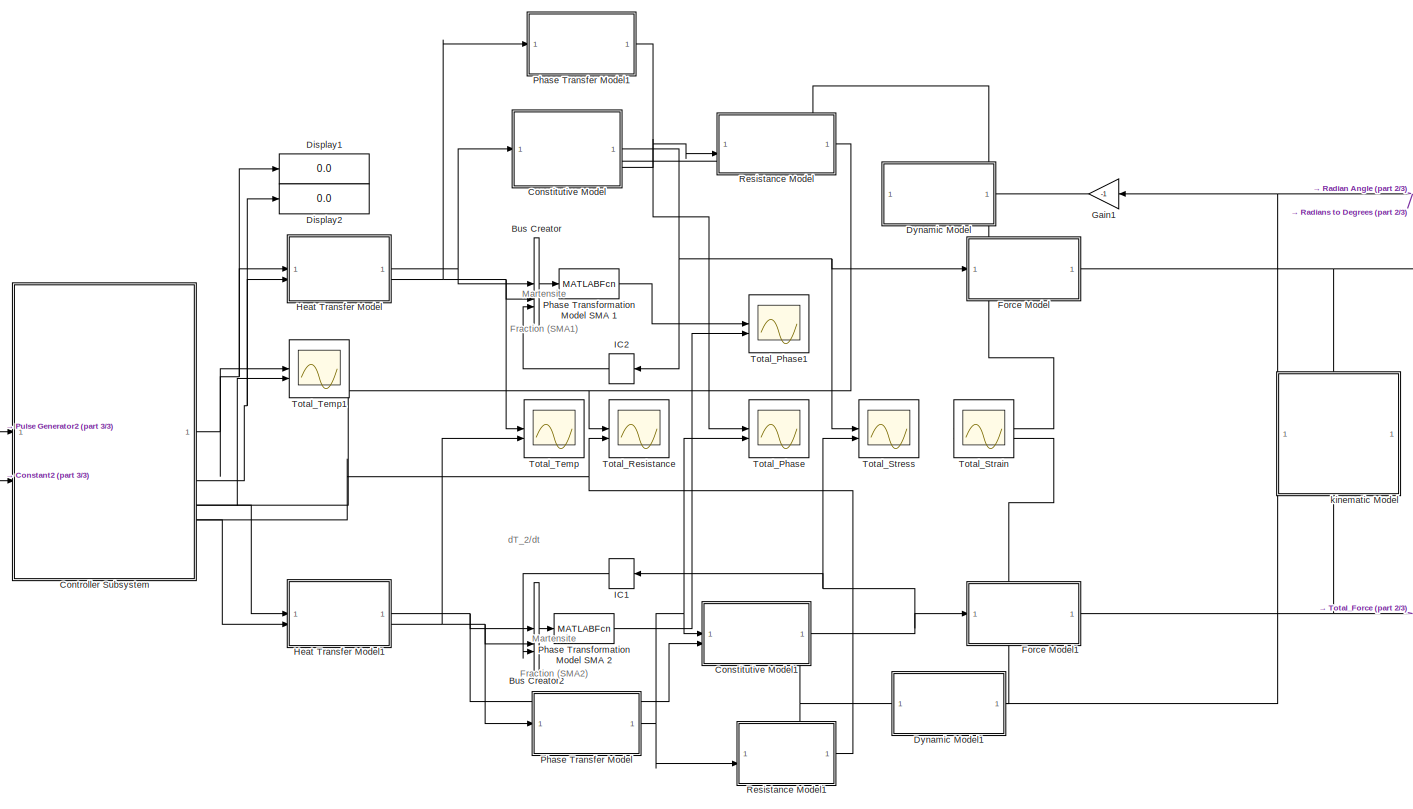
[diagram: root canvas - part 1/3, most of the canvas]
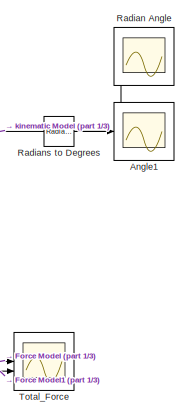
[diagram: root canvas - part 2/3, middle right region]
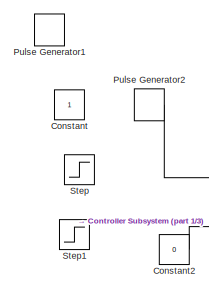
[diagram: root canvas - part 3/3, middle left region]
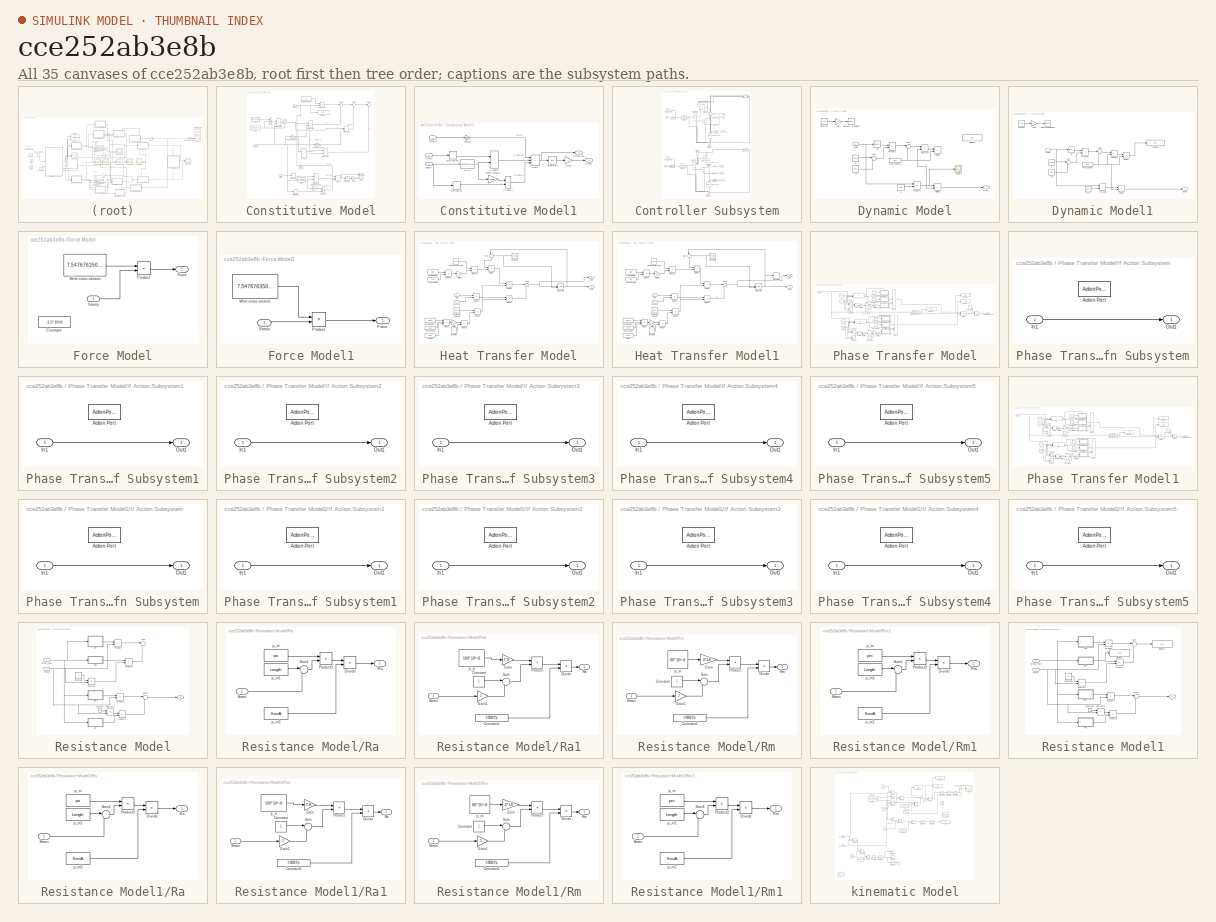
[diagram: thumbnail index - all 35 canvases of the model, root first then tree order]
MODEL slx_cce252ab3e8b
KIND model
CONFIG AbsTol = auto
CONFIG EnableMultiTasking = off
CONFIG FixedStep = auto
CONFIG MaxStep = auto
CONFIG MinStep = auto
CONFIG RelTol = 1e-5
CONFIG SampleTimeConstraint = Unconstrained
CONFIG SolverName = VariableStepAuto
CONFIG StartTime = 0.0
CONFIG StopTime = 10
BLOCK [Scope] Angle1
  Floating = off
  NumInputPorts = 1
  ScopeSpecificationString = Simulink.scopes.TimeScopeBlockCfg('CurrentConfiguration', extmgr.ConfigurationSet(extmgr.Configuration('Core','General UI',true),extmgr.Configuration('Core','Source UI',true),extmgr.Configuration('Sources','WiredSimulink',true,'DataLoggingVariableName','ScopeData5'),extmgr.Configuration('Visuals','Time Domain',true,'SerializedDisplays',{struct('MinYLimReal','-35.80986','MaxYLimReal','35.80986','YL...<+1604ch>
BLOCK [BusCreator] Bus Creator
  DialogController = Simulink.DDGSource_Bus
  DisplayOption = bar
  InheritFromInputs = on
  Inputs = 3
BLOCK [BusCreator] Bus Creator2
  DialogController = Simulink.DDGSource_Bus
  DisplayOption = bar
  InheritFromInputs = on
  Inputs = 3
BLOCK [Constant] Constant
BLOCK [Constant] Constant2
  Value = 0
BLOCK [SubSystem] Constitutive Model
  PortSchema = {"entries":[{"content":{"sides":[{"content":{"connectorIds":["In1"]},"type":"ConnectorPlacement.EquallySpacedRectSide","uuid":"c9b3e1da-3298-4c8a-bded-465174a063b3"},{"content":{"connectorIds":["In2","In3","Out1","Out2"],"side":"RIGHT"},"type":"ConnectorPlacement.EquallySpacedRectSide","uuid":"67c479c6-cef6-423e-878a-f7b75ce5c62a"},{"content":{"side":"TOP"},"type":"ConnectorPlacement.EquallySpaced...<+493ch>
BLOCK [Sum] Constitutive Model/Add1
  IconShape = rectangular
  Inputs = -+
BLOCK [Fcn] Constitutive Model/D(Xi)
  Expr = Da+u*(Dm-Da)
BLOCK [Derivative] Constitutive Model/Derivative
BLOCK [Derivative] Constitutive Model/Derivative1
BLOCK [Display] Constitutive Model/Display2
  Decimation = 1
BLOCK [Constant] Constitutive Model/Ea3
  Value = 75 * 10^9
BLOCK [Constant] Constitutive Model/Em3
  Value = 28 * 10^9
BLOCK [Gain] Constitutive Model/Gain1
  Gain = -1
BLOCK [Integrator] Constitutive Model/Integrator1
  InitialCondition = sigma0
BLOCK [Product] Constitutive Model/Product1
BLOCK [Product] Constitutive Model/Product15
BLOCK [Product] Constitutive Model/Product16
BLOCK [Product] Constitutive Model/Product17
BLOCK [Product] Constitutive Model/Product18
BLOCK [Product] Constitutive Model/Product19
BLOCK [Product] Constitutive Model/Product2
BLOCK [Inport] Constitutive Model/Strain
  Port = 2
BLOCK [Outport] Constitutive Model/Stress 
BLOCK [Outport] Constitutive Model/Stress dot
  Port = 2
BLOCK [Sum] Constitutive Model/Sum1
  IconShape = rectangular
  InputSameDT = on
  Inputs = |+|+|+|
  OutDataTypeStr = Inherit: Same as first input
  SaturateOnIntegerOverflow = on
BLOCK [Sum] Constitutive Model/Sum12
  Inputs = |++
BLOCK [Sum] Constitutive Model/Sum13
  Inputs = |++
BLOCK [Sum] Constitutive Model/Sum14
  Inputs = |++
BLOCK [Sum] Constitutive Model/Sum15
  Inputs = |++
BLOCK [Sum] Constitutive Model/Sum16
  IconShape = rectangular
  Inputs = +-
  SaturateOnIntegerOverflow = on
BLOCK [Inport] Constitutive Model/Temp_In
BLOCK [Gain] Constitutive Model/Themo Tensor1
  Gain = -epsR
  NameLocation = top
  OutDataTypeStr = Inherit: Same as input
  ParamDataTypeStr = Inherit: Same as input
  SaturateOnIntegerOverflow = on
BLOCK [Gain] Constitutive Model/Themo Tensor5
  Gain = -epsR1
  NameLocation = top
  OutDataTypeStr = Inherit: Same as input
  ParamDataTypeStr = Inherit: Same as input
  SaturateOnIntegerOverflow = on
BLOCK [Gain] Constitutive Model/Themo Tensor6
  Gain = epsR1
  NameLocation = top
  OutDataTypeStr = Inherit: Same as input
  ParamDataTypeStr = Inherit: Same as input
  SaturateOnIntegerOverflow = on
BLOCK [Inport] Constitutive Model/phase f
  Port = 3
BLOCK [Constant] Constitutive Model/thermo modulus2
  Value = 0
BLOCK [Gain] Constitutive Model/theta_T
  Gain = thetaT
  OutDataTypeStr = Inherit: Same as input
  ParamDataTypeStr = Inherit: Same as input
  SaturateOnIntegerOverflow = on
BLOCK [SubSystem] Constitutive Model1
BLOCK [Fcn] Constitutive Model1/D(Xi)
  Expr = Da+u*(Dm-Da)
BLOCK [Derivative] Constitutive Model1/Derivative
BLOCK [Derivative] Constitutive Model1/Derivative1
BLOCK [Gain] Constitutive Model1/Gain1
  Gain = -1
BLOCK [Integrator] Constitutive Model1/Integrator1
  InitialCondition = sigma0
BLOCK [Product] Constitutive Model1/Product4
BLOCK [Product] Constitutive Model1/Product5
BLOCK [Inport] Constitutive Model1/Strain
  Port = 3
BLOCK [Outport] Constitutive Model1/Stress
BLOCK [Outport] Constitutive Model1/Stress dot
  Port = 2
BLOCK [Sum] Constitutive Model1/Sum4
  IconShape = rectangular
  InputSameDT = on
  Inputs = |+|+|+|
  OutDataTypeStr = Inherit: Same as first input
  SaturateOnIntegerOverflow = on
BLOCK [Inport] Constitutive Model1/Temp_In
  Port = 2
BLOCK [Gain] Constitutive Model1/Themo Tensor1
  Gain = -epsR
  NameLocation = top
  OutDataTypeStr = Inherit: Same as input
  ParamDataTypeStr = Inherit: Same as input
  SaturateOnIntegerOverflow = on
BLOCK [Inport] Constitutive Model1/phase f
BLOCK [Gain] Constitutive Model1/theta_T
  Gain = thetaT
  OutDataTypeStr = Inherit: Same as input
  ParamDataTypeStr = Inherit: Same as input
  SaturateOnIntegerOverflow = on
BLOCK [SubSystem] Controller Subsystem
  PortSchema = {"entries":[{"content":{"sides":[{"content":{"connectorIds":["In1","In2"]},"type":"ConnectorPlacement.EquallySpacedRectSide","uuid":"c1716ee7-70f7-46a1-8417-79095dab97c2"},{"content":{"connectorIds":["Out1","Out2","In3","In4","Out3","Out4"],"side":"RIGHT"},"type":"ConnectorPlacement.EquallySpacedRectSide","uuid":"19d288d4-4446-4dc5-8a40-a267b4a694c5"},{"content":{"connectorIds":[],"side":"TOP"},"t...<+423ch>
BLOCK [Outport] Controller Subsystem/AMP
  Port = 2
BLOCK [Outport] Controller Subsystem/AMP1
  Port = 4
BLOCK [Reference] Controller Subsystem/Amp_Out  REF=nesl_utility/PS-Simulink
Converter
  SourceBlock = nesl_utility/PS-Simulink\nConverter
  SourceType = PS-Simulink\nConverter
BLOCK [Reference] Controller Subsystem/Amp_Out1  REF=nesl_utility/PS-Simulink
Converter
  SourceBlock = nesl_utility/PS-Simulink\nConverter
  SourceType = PS-Simulink\nConverter
BLOCK [Reference] Controller Subsystem/Controlled PWM Voltage  REF=ee_lib/Integrated Circuits/Controlled PWM
Voltage
  SourceBlock = ee_lib/Integrated Circuits/Controlled PWM\nVoltage
  SourceType = Controlled PWM\nVoltage
BLOCK [Reference] Controller Subsystem/Controlled PWM Voltage1  REF=ee_lib/Integrated Circuits/Controlled PWM
Voltage
  SourceBlock = ee_lib/Integrated Circuits/Controlled PWM\nVoltage
  SourceType = Controlled PWM\nVoltage
BLOCK [Reference] Controller Subsystem/Current Sensor  REF=fl_lib/Electrical/Electrical Sensors/Current Sensor
  NameLocation = left
  SourceBlock = fl_lib/Electrical/Electrical Sensors/Current Sensor
  SourceType = Current Sensor
BLOCK [Reference] Controller Subsystem/Current Sensor1  REF=fl_lib/Electrical/Electrical Sensors/Current Sensor
  NameLocation = left
  SourceBlock = fl_lib/Electrical/Electrical Sensors/Current Sensor
  SourceType = Current Sensor
BLOCK [Reference] Controller Subsystem/Electrical Reference  REF=fl_lib/Electrical/Electrical Elements/Electrical Reference
  NameLocation = right
  SourceBlock = fl_lib/Electrical/Electrical Elements/Electrical Reference
  SourceType = Electrical Reference
BLOCK [Reference] Controller Subsystem/Electrical Reference1  REF=fl_lib/Electrical/Electrical Elements/Electrical Reference
  NameLocation = right
  SourceBlock = fl_lib/Electrical/Electrical Elements/Electrical Reference
  SourceType = Electrical Reference
BLOCK [Reference] Controller Subsystem/NPN Bipolar Transistor  REF=ee_lib/Semiconductors &
Converters/NPN Bipolar
Transistor
  SourceBlock = ee_lib/Semiconductors &\nConverters/NPN Bipolar\nTransistor
  SourceType = NPN Bipolar\nTransistor
BLOCK [Reference] Controller Subsystem/NPN Bipolar Transistor1  REF=ee_lib/Semiconductors &
Converters/NPN Bipolar
Transistor
  SourceBlock = ee_lib/Semiconductors &\nConverters/NPN Bipolar\nTransistor
  SourceType = NPN Bipolar\nTransistor
BLOCK [Reference] Controller Subsystem/P-Channel MOSFET  REF=ee_lib/Semiconductors &
Converters/P-Channel MOSFET
  SourceBlock = ee_lib/Semiconductors &\nConverters/P-Channel MOSFET
  SourceType = P-Channel MOSFET
BLOCK [Reference] Controller Subsystem/P-Channel MOSFET1  REF=ee_lib/Semiconductors &
Converters/P-Channel MOSFET
  SourceBlock = ee_lib/Semiconductors &\nConverters/P-Channel MOSFET
  SourceType = P-Channel MOSFET
BLOCK [Inport] Controller Subsystem/PWM
BLOCK [Inport] Controller Subsystem/PWM1
  Port = 2
BLOCK [Inport] Controller Subsystem/RESISTANCE
  Port = 3
BLOCK [Inport] Controller Subsystem/RESISTANCE1
  Port = 4
BLOCK [Reference] Controller Subsystem/Resistor  REF=ee_lib/Passive/Resistor
  NameLocation = right
  SourceBlock = ee_lib/Passive/Resistor
  SourceType = Resistor
BLOCK [Reference] Controller Subsystem/Resistor1  REF=ee_lib/Passive/Resistor
  NameLocation = right
  SourceBlock = ee_lib/Passive/Resistor
  SourceType = Resistor
BLOCK [Reference] Controller Subsystem/Simulink-PS Converter  REF=nesl_utility/Simulink-PS
Converter
  SourceBlock = nesl_utility/Simulink-PS\nConverter
  SourceType = Simulink-PS\nConverter
BLOCK [Reference] Controller Subsystem/Simulink-PS Converter1  REF=nesl_utility/Simulink-PS
Converter
  SourceBlock = nesl_utility/Simulink-PS\nConverter
  SourceType = Simulink-PS\nConverter
BLOCK [Reference] Controller Subsystem/Simulink-PS Converter2  REF=nesl_utility/Simulink-PS
Converter
  SourceBlock = nesl_utility/Simulink-PS\nConverter
  SourceType = Simulink-PS\nConverter
BLOCK [Reference] Controller Subsystem/Simulink-PS Converter3  REF=nesl_utility/Simulink-PS
Converter
  SourceBlock = nesl_utility/Simulink-PS\nConverter
  SourceType = Simulink-PS\nConverter
BLOCK [Reference] Controller Subsystem/Solver Configuration1  REF=nesl_utility/Solver
Configuration
  SourceBlock = nesl_utility/Solver\nConfiguration
  SourceType = Solver\nConfiguration
BLOCK [Reference] Controller Subsystem/Solver Configuration2  REF=nesl_utility/Solver
Configuration
  SourceBlock = nesl_utility/Solver\nConfiguration
  SourceType = Solver\nConfiguration
BLOCK [Outport] Controller Subsystem/VOLT
BLOCK [Outport] Controller Subsystem/VOLT1
  Port = 3
BLOCK [Reference] Controller Subsystem/Variable Resistor1  REF=fl_lib/Electrical/Electrical Elements/Variable Resistor
  NameLocation = left
  SourceBlock = fl_lib/Electrical/Electrical Elements/Variable Resistor
  SourceType = Variable Resistor
BLOCK [Reference] Controller Subsystem/Variable Resistor2  REF=fl_lib/Electrical/Electrical Elements/Variable Resistor
  NameLocation = left
  SourceBlock = fl_lib/Electrical/Electrical Elements/Variable Resistor
  SourceType = Variable Resistor
BLOCK [Reference] Controller Subsystem/Voltage Sensor  REF=fl_lib/Electrical/Electrical Sensors/Voltage Sensor
  NameLocation = right
  SourceBlock = fl_lib/Electrical/Electrical Sensors/Voltage Sensor
  SourceType = Voltage Sensor
BLOCK [Reference] Controller Subsystem/Voltage Sensor2  REF=fl_lib/Electrical/Electrical Sensors/Voltage Sensor
  NameLocation = right
  SourceBlock = fl_lib/Electrical/Electrical Sensors/Voltage Sensor
  SourceType = Voltage Sensor
BLOCK [Reference] Controller Subsystem/Voltage Source  REF=ee_lib/Sources/Voltage Source
  NameLocation = top
  SourceBlock = ee_lib/Sources/Voltage Source
  SourceType = Voltage Source
BLOCK [Reference] Controller Subsystem/Voltage Source1  REF=ee_lib/Sources/Voltage Source
  NameLocation = top
  SourceBlock = ee_lib/Sources/Voltage Source
  SourceType = Voltage Source
BLOCK [Reference] Controller Subsystem/Voltage_Out  REF=nesl_utility/PS-Simulink
Converter
  SourceBlock = nesl_utility/PS-Simulink\nConverter
  SourceType = PS-Simulink\nConverter
BLOCK [Reference] Controller Subsystem/Voltage_Out2  REF=nesl_utility/PS-Simulink
Converter
  SourceBlock = nesl_utility/PS-Simulink\nConverter
  SourceType = PS-Simulink\nConverter
BLOCK [Display] Display1
  Decimation = 1
  Format = long
BLOCK [Display] Display2
  Decimation = 1
  Format = long
BLOCK [SubSystem] Dynamic Model
  PortSchema = {"entries":[{"content":{"sides":[{"content":{"connectorIds":["Out1"]},"type":"ConnectorPlacement.EquallySpacedRectSide","uuid":"90bb22bb-5451-4ff6-9e11-70a570c51edc"},{"content":{"connectorIds":["In1"],"side":"RIGHT"},"type":"ConnectorPlacement.EquallySpacedRectSide","uuid":"143853a4-427c-4e61-ad9a-3c3bdd758da2"},{"content":{"connectorIds":[],"side":"TOP"},"type":"ConnectorPlacement.EquallySpacedR...<+384ch>
BLOCK [Constant] Dynamic Model/Constant
  Value = 51.4
BLOCK [Reference] Dynamic Model/Degrees to Radians  REF=simulink_extras/Transformations/Degrees to
Radians
  SourceBlock = simulink_extras/Transformations/Degrees to\nRadians
  SourceType = DegreesToRadians
BLOCK [Display] Dynamic Model/Display3
  Decimation = 1
BLOCK [Product] Dynamic Model/Divide1
  Inputs = */
BLOCK [Product] Dynamic Model/Divide2
  Inputs = */
BLOCK [Gain] Dynamic Model/Gain1
  Gain = -1
BLOCK [Product] Dynamic Model/Product1
BLOCK [Product] Dynamic Model/Product2
BLOCK [Scope] Dynamic Model/Scope
  Floating = off
  NumInputPorts = 1
  ScopeSpecificationString = Simulink.scopes.TimeScopeBlockCfg('CurrentConfiguration', extmgr.ConfigurationSet(extmgr.Configuration('Core','General UI',true),extmgr.Configuration('Core','Source UI',true),extmgr.Configuration('Sources','WiredSimulink',true,'DataLoggingVariableName','ScopeData1'),extmgr.Configuration('Visuals','Time Domain',true,'SerializedDisplays',{struct('MinYLimReal','-0.00062','MaxYLimReal','0.00562','YLab...<+1421ch>
BLOCK [Trigonometry] Dynamic Model/Sin
BLOCK [Outport] Dynamic Model/Strain_
BLOCK [Sum] Dynamic Model/Subtract
  IconShape = rectangular
  Inputs = +-
BLOCK [Sum] Dynamic Model/Sum
  Inputs = |++
BLOCK [Sum] Dynamic Model/Sum1
  Inputs = |++
BLOCK [Constant] Dynamic Model/Wire Length1
  Value = 0.18
BLOCK [Inport] Dynamic Model/angle
BLOCK [Constant] Dynamic Model/l1
  Value = .0050
BLOCK [Constant] Dynamic Model/l2
  Value = 0.01
BLOCK [Constant] Dynamic Model/l_m
  Value = .004
BLOCK [SubSystem] Dynamic Model1
  PortSchema = {"entries":[{"content":{"sides":[{"content":{"connectorIds":["Out1"]},"type":"ConnectorPlacement.EquallySpacedRectSide","uuid":"4203e3c8-1593-44c0-86d7-b258dd88ba31"},{"content":{"connectorIds":["In1"],"side":"RIGHT"},"type":"ConnectorPlacement.EquallySpacedRectSide","uuid":"d308953f-4493-49ae-82cf-d1c0c8b27702"},{"content":{"connectorIds":[],"side":"TOP"},"type":"ConnectorPlacement.EquallySpacedR...<+384ch>
BLOCK [Constant] Dynamic Model1/Constant
  Value = 51.4
BLOCK [Reference] Dynamic Model1/Degrees to Radians  REF=simulink_extras/Transformations/Degrees to
Radians
  SourceBlock = simulink_extras/Transformations/Degrees to\nRadians
  SourceType = DegreesToRadians
BLOCK [Display] Dynamic Model1/Display3
  Decimation = 1
BLOCK [Product] Dynamic Model1/Divide1
  Inputs = */
BLOCK [Product] Dynamic Model1/Divide2
  Inputs = */
BLOCK [Gain] Dynamic Model1/Gain1
BLOCK [Product] Dynamic Model1/Product1
BLOCK [Product] Dynamic Model1/Product2
BLOCK [Trigonometry] Dynamic Model1/Sin
BLOCK [Outport] Dynamic Model1/Strain_
BLOCK [Sum] Dynamic Model1/Subtract
  IconShape = rectangular
  Inputs = +-
BLOCK [Sum] Dynamic Model1/Sum
  Inputs = |++
BLOCK [Sum] Dynamic Model1/Sum1
  Inputs = |++
BLOCK [Constant] Dynamic Model1/Wire Length1
  Value = 0.18
BLOCK [Inport] Dynamic Model1/angle
BLOCK [Constant] Dynamic Model1/l1
  Value = .0050
BLOCK [Constant] Dynamic Model1/l2
  Value = 0.01
BLOCK [Constant] Dynamic Model1/l_m
  Value = .004
BLOCK [SubSystem] Force Model
BLOCK [Constant] Force Model/Constant
  Value = -1.5*10^8
BLOCK [Outport] Force Model/Force
BLOCK [Product] Force Model/Product
BLOCK [Inport] Force Model/Stress
BLOCK [Constant] Force Model/Wire cross section
  Value = 7.5476763502 * 10^-8
BLOCK [SubSystem] Force Model1
BLOCK [Outport] Force Model1/Force
BLOCK [Product] Force Model1/Product
BLOCK [Inport] Force Model1/Stress
BLOCK [Constant] Force Model1/Wire cross section
  Value = 7.5476763502 * 10^-8
BLOCK [Gain] Gain1
  Gain = -1
BLOCK [SubSystem] Heat Transfer Model
BLOCK [Constant] Heat Transfer Model/Constant
  Value = 4
BLOCK [Constant] Heat Transfer Model/Constant1
  Value = Tamb
BLOCK [Inport] Heat Transfer Model/Current
  Port = 2
BLOCK [Constant] Heat Transfer Model/Density
  Value = dens
BLOCK [Product] Heat Transfer Model/Divide1
  Inputs = **
BLOCK [Product] Heat Transfer Model/Divide12
  Inputs = **
BLOCK [Product] Heat Transfer Model/Divide2
  Inputs = **
BLOCK [Product] Heat Transfer Model/Divide3
  Inputs = */
BLOCK [Product] Heat Transfer Model/Divide4
  Inputs = */
BLOCK [Product] Heat Transfer Model/Divide5
  Inputs = **
BLOCK [Product] Heat Transfer Model/Divide6
  Inputs = */
BLOCK [Product] Heat Transfer Model/Divide7
  Inputs = ***
BLOCK [Product] Heat Transfer Model/Divide9
  Inputs = **
BLOCK [Constant] Heat Transfer Model/Heat Transfer Coeff
  Value = 150
BLOCK [Integrator] Heat Transfer Model/Integrator
  InitialCondition = 25
  InitialConditionSource = external
BLOCK [Gain] Heat Transfer Model/Multiply
  Gain = pi
BLOCK [Gain] Heat Transfer Model/Multiply2
  Gain = pi
BLOCK [Constant] Heat Transfer Model/Specific Heat Capacity
  Value = 837.3
BLOCK [Sum] Heat Transfer Model/Sum
  Inputs = |+-
  NameLocation = left
BLOCK [Sum] Heat Transfer Model/Sum1
  Inputs = |-+
BLOCK [Outport] Heat Transfer Model/Temp
  Port = 2
BLOCK [Inport] Heat Transfer Model/Volt
BLOCK [Constant] Heat Transfer Model/Wire Diameter
  Value = Dw
BLOCK [Constant] Heat Transfer Model/Wire Diameter ^2
  Value = Dw^2
BLOCK [Constant] Heat Transfer Model/Wire Length
  Value = Lw2
BLOCK [Constant] Heat Transfer Model/Wire Length1
  Value = Lw2
BLOCK [Outport] Heat Transfer Model/dT//dt
BLOCK [SubSystem] Heat Transfer Model1
BLOCK [Constant] Heat Transfer Model1/Constant
  Value = 4
BLOCK [Constant] Heat Transfer Model1/Constant1
  Value = Tamb
BLOCK [Inport] Heat Transfer Model1/Current
  Port = 2
BLOCK [Constant] Heat Transfer Model1/Density
  Value = dens
BLOCK [Derivative] Heat Transfer Model1/Derivative
BLOCK [Product] Heat Transfer Model1/Divide1
  Inputs = **
BLOCK [Product] Heat Transfer Model1/Divide12
  Inputs = **
BLOCK [Product] Heat Transfer Model1/Divide2
  Inputs = **
BLOCK [Product] Heat Transfer Model1/Divide3
  Inputs = */
BLOCK [Product] Heat Transfer Model1/Divide4
  Inputs = */
BLOCK [Product] Heat Transfer Model1/Divide5
  Inputs = **
BLOCK [Product] Heat Transfer Model1/Divide6
  Inputs = */
BLOCK [Product] Heat Transfer Model1/Divide7
  Inputs = ***
BLOCK [Product] Heat Transfer Model1/Divide9
  Inputs = **
BLOCK [Constant] Heat Transfer Model1/Heat Transfer Coeff
  Value = 150
BLOCK [Integrator] Heat Transfer Model1/Integrator
  InitialCondition = 25
  InitialConditionSource = external
BLOCK [Gain] Heat Transfer Model1/Multiply
  Gain = pi
BLOCK [Gain] Heat Transfer Model1/Multiply2
  Gain = pi
BLOCK [Constant] Heat Transfer Model1/Specific Heat Capacity
  Value = 837.3
BLOCK [Sum] Heat Transfer Model1/Sum
  Inputs = |+-
  NameLocation = left
BLOCK [Sum] Heat Transfer Model1/Sum1
  Inputs = |-+
BLOCK [Outport] Heat Transfer Model1/Temp
  Port = 2
BLOCK [Inport] Heat Transfer Model1/Volt
BLOCK [Constant] Heat Transfer Model1/Wire Diameter
  Value = Dw
BLOCK [Constant] Heat Transfer Model1/Wire Diameter ^2
  Value = Dw^2
BLOCK [Constant] Heat Transfer Model1/Wire Length
  Value = Lw1
BLOCK [Constant] Heat Transfer Model1/Wire Length1
  Value = Lw1
BLOCK [Outport] Heat Transfer Model1/dT//dt
BLOCK [InitialCondition] IC1
  Value = 0
BLOCK [InitialCondition] IC2
  Value = 0
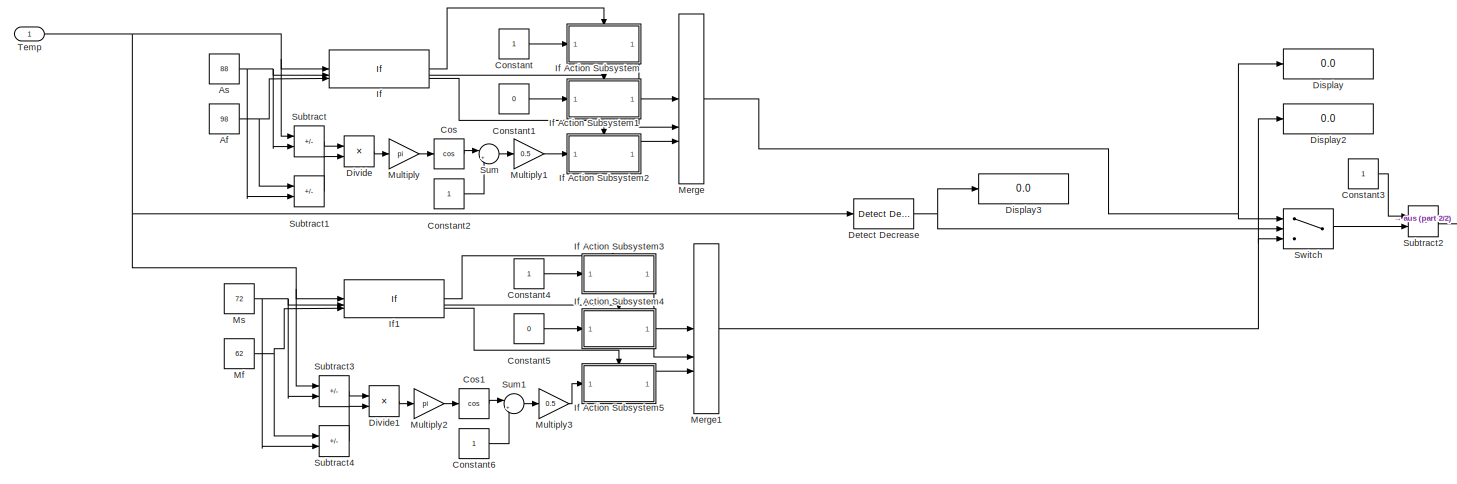
[diagram: Phase Transfer Model - part 1/2, most of the canvas]
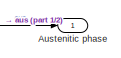
[diagram: Phase Transfer Model - part 2/2, middle right region]
BLOCK [SubSystem] Phase Transfer Model
BLOCK [Constant] Phase Transfer Model/Af
  Value = 98
BLOCK [Constant] Phase Transfer Model/As
  Value = 88
BLOCK [Outport] Phase Transfer Model/Austenitic phase 
BLOCK [Constant] Phase Transfer Model/Constant
BLOCK [Constant] Phase Transfer Model/Constant1
  Value = 0
BLOCK [Constant] Phase Transfer Model/Constant2
BLOCK [Constant] Phase Transfer Model/Constant3
BLOCK [Constant] Phase Transfer Model/Constant4
BLOCK [Constant] Phase Transfer Model/Constant5
  Value = 0
BLOCK [Constant] Phase Transfer Model/Constant6
BLOCK [Trigonometry] Phase Transfer Model/Cos
  Operator = cos
BLOCK [Trigonometry] Phase Transfer Model/Cos1
  Operator = cos
BLOCK [Reference] Phase Transfer Model/Detect Decrease  REF=simulink/Logic and Bit
Operations/Detect
Decrease
  SourceBlock = simulink/Logic and Bit\nOperations/Detect\nDecrease
  SourceType = Detect Decrease
BLOCK [Display] Phase Transfer Model/Display
  Decimation = 1
BLOCK [Display] Phase Transfer Model/Display2
  Decimation = 1
BLOCK [Display] Phase Transfer Model/Display3
  Decimation = 1
BLOCK [Product] Phase Transfer Model/Divide
  Inputs = */
BLOCK [Product] Phase Transfer Model/Divide1
  Inputs = */
BLOCK [If] Phase Transfer Model/If
  ElseIfExpressions = u1> u3
  IfExpression = u1 < u2
  NumInputs = 3
BLOCK [SubSystem] Phase Transfer Model/If Action Subsystem
  TreatAsAtomicUnit = on
BLOCK [ActionPort] Phase Transfer Model/If Action Subsystem/Action Port
  ActionPortLabel = if(u1 < u2)
BLOCK [Inport] Phase Transfer Model/If Action Subsystem/In1
BLOCK [Outport] Phase Transfer Model/If Action Subsystem/Out1
BLOCK [SubSystem] Phase Transfer Model/If Action Subsystem1
  TreatAsAtomicUnit = on
BLOCK [ActionPort] Phase Transfer Model/If Action Subsystem1/Action Port
  ActionPortLabel = elseif(u1> u3)
BLOCK [Inport] Phase Transfer Model/If Action Subsystem1/In1
BLOCK [Outport] Phase Transfer Model/If Action Subsystem1/Out1
BLOCK [SubSystem] Phase Transfer Model/If Action Subsystem2
  TreatAsAtomicUnit = on
BLOCK [ActionPort] Phase Transfer Model/If Action Subsystem2/Action Port
  ActionPortLabel = else
BLOCK [Inport] Phase Transfer Model/If Action Subsystem2/In1
BLOCK [Outport] Phase Transfer Model/If Action Subsystem2/Out1
BLOCK [SubSystem] Phase Transfer Model/If Action Subsystem3
  TreatAsAtomicUnit = on
BLOCK [ActionPort] Phase Transfer Model/If Action Subsystem3/Action Port
  ActionPortLabel = if(u1 > u2)
BLOCK [Inport] Phase Transfer Model/If Action Subsystem3/In1
BLOCK [Outport] Phase Transfer Model/If Action Subsystem3/Out1
BLOCK [SubSystem] Phase Transfer Model/If Action Subsystem4
  TreatAsAtomicUnit = on
BLOCK [ActionPort] Phase Transfer Model/If Action Subsystem4/Action Port
  ActionPortLabel = elseif(u1< u3)
BLOCK [Inport] Phase Transfer Model/If Action Subsystem4/In1
BLOCK [Outport] Phase Transfer Model/If Action Subsystem4/Out1
BLOCK [SubSystem] Phase Transfer Model/If Action Subsystem5
  TreatAsAtomicUnit = on
BLOCK [ActionPort] Phase Transfer Model/If Action Subsystem5/Action Port
  ActionPortLabel = else
BLOCK [Inport] Phase Transfer Model/If Action Subsystem5/In1
BLOCK [Outport] Phase Transfer Model/If Action Subsystem5/Out1
BLOCK [If] Phase Transfer Model/If1
  ElseIfExpressions = u1< u3
  IfExpression = u1 > u2
  NumInputs = 3
BLOCK [Merge] Phase Transfer Model/Merge
  Inputs = 3
BLOCK [Merge] Phase Transfer Model/Merge1
  Inputs = 3
BLOCK [Constant] Phase Transfer Model/Mf
  Value = 62
BLOCK [Constant] Phase Transfer Model/Ms
  Value = 72
BLOCK [Gain] Phase Transfer Model/Multiply
  Gain = pi
BLOCK [Gain] Phase Transfer Model/Multiply1
  Gain = 0.5
BLOCK [Gain] Phase Transfer Model/Multiply2
  Gain = pi
BLOCK [Gain] Phase Transfer Model/Multiply3
  Gain = 0.5
BLOCK [Sum] Phase Transfer Model/Subtract
  IconShape = rectangular
  Inputs = +-
BLOCK [Sum] Phase Transfer Model/Subtract1
  IconShape = rectangular
  Inputs = +-
BLOCK [Sum] Phase Transfer Model/Subtract2
  IconShape = rectangular
  Inputs = +-
BLOCK [Sum] Phase Transfer Model/Subtract3
  IconShape = rectangular
  Inputs = +-
BLOCK [Sum] Phase Transfer Model/Subtract4
  IconShape = rectangular
  Inputs = +-
BLOCK [Sum] Phase Transfer Model/Sum
  Inputs = |++
BLOCK [Sum] Phase Transfer Model/Sum1
  Inputs = |++
BLOCK [Switch] Phase Transfer Model/Switch
  Criteria = u2 > Threshold
  InputSameDT = off
  SaturateOnIntegerOverflow = off
  Threshold = 0.5
BLOCK [Inport] Phase Transfer Model/Temp
BLOCK [SubSystem] Phase Transfer Model1
BLOCK [Constant] Phase Transfer Model1/Af
  Value = 98
BLOCK [Constant] Phase Transfer Model1/As
  Value = 88
BLOCK [Outport] Phase Transfer Model1/Austenitic phase 
BLOCK [Constant] Phase Transfer Model1/Constant
BLOCK [Constant] Phase Transfer Model1/Constant1
  Value = 0
BLOCK [Constant] Phase Transfer Model1/Constant2
BLOCK [Constant] Phase Transfer Model1/Constant3
BLOCK [Constant] Phase Transfer Model1/Constant4
BLOCK [Constant] Phase Transfer Model1/Constant5
  Value = 0
BLOCK [Constant] Phase Transfer Model1/Constant6
BLOCK [Trigonometry] Phase Transfer Model1/Cos
  Operator = cos
BLOCK [Trigonometry] Phase Transfer Model1/Cos1
  Operator = cos
BLOCK [Reference] Phase Transfer Model1/Detect Decrease  REF=simulink/Logic and Bit
Operations/Detect
Decrease
  SourceBlock = simulink/Logic and Bit\nOperations/Detect\nDecrease
  SourceType = Detect Decrease
BLOCK [Display] Phase Transfer Model1/Display
  Decimation = 1
BLOCK [Display] Phase Transfer Model1/Display2
  Decimation = 1
BLOCK [Display] Phase Transfer Model1/Display3
  Decimation = 1
BLOCK [Product] Phase Transfer Model1/Divide
  Inputs = */
BLOCK [Product] Phase Transfer Model1/Divide1
  Inputs = */
BLOCK [If] Phase Transfer Model1/If
  ElseIfExpressions = u1> u3
  IfExpression = u1 < u2
  NumInputs = 3
BLOCK [SubSystem] Phase Transfer Model1/If Action Subsystem
  TreatAsAtomicUnit = on
BLOCK [ActionPort] Phase Transfer Model1/If Action Subsystem/Action Port
  ActionPortLabel = if(u1 < u2)
BLOCK [Inport] Phase Transfer Model1/If Action Subsystem/In1
BLOCK [Outport] Phase Transfer Model1/If Action Subsystem/Out1
BLOCK [SubSystem] Phase Transfer Model1/If Action Subsystem1
  TreatAsAtomicUnit = on
BLOCK [ActionPort] Phase Transfer Model1/If Action Subsystem1/Action Port
  ActionPortLabel = elseif(u1> u3)
BLOCK [Inport] Phase Transfer Model1/If Action Subsystem1/In1
BLOCK [Outport] Phase Transfer Model1/If Action Subsystem1/Out1
BLOCK [SubSystem] Phase Transfer Model1/If Action Subsystem2
  TreatAsAtomicUnit = on
BLOCK [ActionPort] Phase Transfer Model1/If Action Subsystem2/Action Port
  ActionPortLabel = else
BLOCK [Inport] Phase Transfer Model1/If Action Subsystem2/In1
BLOCK [Outport] Phase Transfer Model1/If Action Subsystem2/Out1
BLOCK [SubSystem] Phase Transfer Model1/If Action Subsystem3
  TreatAsAtomicUnit = on
BLOCK [ActionPort] Phase Transfer Model1/If Action Subsystem3/Action Port
  ActionPortLabel = if(u1 > u2)
BLOCK [Inport] Phase Transfer Model1/If Action Subsystem3/In1
BLOCK [Outport] Phase Transfer Model1/If Action Subsystem3/Out1
BLOCK [SubSystem] Phase Transfer Model1/If Action Subsystem4
  TreatAsAtomicUnit = on
BLOCK [ActionPort] Phase Transfer Model1/If Action Subsystem4/Action Port
  ActionPortLabel = elseif(u1< u3)
BLOCK [Inport] Phase Transfer Model1/If Action Subsystem4/In1
BLOCK [Outport] Phase Transfer Model1/If Action Subsystem4/Out1
BLOCK [SubSystem] Phase Transfer Model1/If Action Subsystem5
  TreatAsAtomicUnit = on
BLOCK [ActionPort] Phase Transfer Model1/If Action Subsystem5/Action Port
  ActionPortLabel = else
BLOCK [Inport] Phase Transfer Model1/If Action Subsystem5/In1
BLOCK [Outport] Phase Transfer Model1/If Action Subsystem5/Out1
BLOCK [If] Phase Transfer Model1/If1
  ElseIfExpressions = u1< u3
  IfExpression = u1 > u2
  NumInputs = 3
BLOCK [Merge] Phase Transfer Model1/Merge
  Inputs = 3
BLOCK [Merge] Phase Transfer Model1/Merge1
  Inputs = 3
BLOCK [Constant] Phase Transfer Model1/Mf
  Value = 62
BLOCK [Constant] Phase Transfer Model1/Ms
  Value = 72
BLOCK [Gain] Phase Transfer Model1/Multiply
  Gain = pi
BLOCK [Gain] Phase Transfer Model1/Multiply1
  Gain = 0.5
BLOCK [Gain] Phase Transfer Model1/Multiply2
  Gain = pi
BLOCK [Gain] Phase Transfer Model1/Multiply3
  Gain = 0.5
BLOCK [Sum] Phase Transfer Model1/Subtract
  IconShape = rectangular
  Inputs = +-
BLOCK [Sum] Phase Transfer Model1/Subtract1
  IconShape = rectangular
  Inputs = +-
BLOCK [Sum] Phase Transfer Model1/Subtract2
  IconShape = rectangular
  Inputs = +-
BLOCK [Sum] Phase Transfer Model1/Subtract3
  IconShape = rectangular
  Inputs = +-
BLOCK [Sum] Phase Transfer Model1/Subtract4
  IconShape = rectangular
  Inputs = +-
BLOCK [Sum] Phase Transfer Model1/Sum
  Inputs = |++
BLOCK [Sum] Phase Transfer Model1/Sum1
  Inputs = |++
BLOCK [Switch] Phase Transfer Model1/Switch
  Criteria = u2 > Threshold
  InputSameDT = off
  SaturateOnIntegerOverflow = off
  Threshold = 0.5
BLOCK [Inport] Phase Transfer Model1/Temp
BLOCK [MATLABFcn] Phase Transformation Model SMA 1
  MATLABFcn = SMA1_Martensite_Fraction
  OutputDimensions = 1
BLOCK [MATLABFcn] Phase Transformation Model SMA 2
  MATLABFcn = SMA2_Martensite_Fraction
  OutputDimensions = 1
BLOCK [DiscretePulseGenerator] Pulse Generator1
  Amplitude = 0.8
  Period = 40
  PhaseDelay = 0.5
  PulseType = Time based
  PulseWidth = 2
BLOCK [DiscretePulseGenerator] Pulse Generator2
  Period = 40
  PhaseDelay = 0.5
  PulseType = Time based
BLOCK [Scope] Radian Angle
  Floating = off
  NumInputPorts = 1
  ScopeSpecificationString = Simulink.scopes.TimeScopeBlockCfg('CurrentConfiguration', extmgr.ConfigurationSet(extmgr.Configuration('Core','General UI',true),extmgr.Configuration('Core','Source UI',true),extmgr.Configuration('Sources','WiredSimulink',true,'DataLoggingVariableName','ScopeData2'),extmgr.Configuration('Visuals','Time Domain',true,'SerializedDisplays',{struct('MinYLimReal','-0.48536','MaxYLimReal','0.05393','YLab...<+1565ch>
BLOCK [Reference] Radians to Degrees  REF=simulink_extras/Transformations/Radians
to Degrees
  SourceBlock = simulink_extras/Transformations/Radians\nto Degrees
  SourceType = RadiansToDegrees
BLOCK [SubSystem] Resistance Model
BLOCK [Constant] Resistance Model/Constant
BLOCK [Constant] Resistance Model/Constant1
BLOCK [Inport] Resistance Model/Phase
  Port = 2
BLOCK [Product] Resistance Model/Product
BLOCK [Product] Resistance Model/Product1
BLOCK [Product] Resistance Model/Product2
BLOCK [Product] Resistance Model/Product3
BLOCK [Outport] Resistance Model/R
BLOCK [SubSystem] Resistance Model/Ra
BLOCK [Product] Resistance Model/Ra/Divide
  Inputs = */
BLOCK [Product] Resistance Model/Ra/Product2
BLOCK [Outport] Resistance Model/Ra/Ra
BLOCK [Inport] Resistance Model/Ra/Strain
BLOCK [Sum] Resistance Model/Ra/Sum1
  Inputs = |++
BLOCK [Constant] Resistance Model/Ra/p_m
  NameLocation = top
  Value = pa
BLOCK [Constant] Resistance Model/Ra/p_m1
  Value = Length
BLOCK [Constant] Resistance Model/Ra/p_m2
  NameLocation = top
  Value = SectA
BLOCK [SubSystem] Resistance Model/Ra1
BLOCK [Constant] Resistance Model/Ra1/Constant
BLOCK [Constant] Resistance Model/Ra1/Constant1
  Value = 0.00031^2*pi
BLOCK [Product] Resistance Model/Ra1/Divide
  Inputs = */
BLOCK [Gain] Resistance Model/Ra1/Gain
  Gain = 4*.18
BLOCK [Gain] Resistance Model/Ra1/Gain1
  Gain = 2
BLOCK [Product] Resistance Model/Ra1/Product
BLOCK [Outport] Resistance Model/Ra1/Ra
BLOCK [Inport] Resistance Model/Ra1/Strain
BLOCK [Sum] Resistance Model/Ra1/Sum
  Inputs = |++
BLOCK [Constant] Resistance Model/Ra1/p_a
  Value = 100*10^-8
BLOCK [SubSystem] Resistance Model/Rm
BLOCK [Constant] Resistance Model/Rm/Constant
BLOCK [Constant] Resistance Model/Rm/Constant1
  Value = 0.00031^2*pi
BLOCK [Product] Resistance Model/Rm/Divide
  Inputs = */
BLOCK [Gain] Resistance Model/Rm/Gain
  Gain = 4*.18
BLOCK [Gain] Resistance Model/Rm/Gain1
  Gain = 2
BLOCK [Product] Resistance Model/Rm/Product
BLOCK [Outport] Resistance Model/Rm/Rm
BLOCK [Inport] Resistance Model/Rm/Strain
BLOCK [Sum] Resistance Model/Rm/Sum
  Inputs = |++
BLOCK [Constant] Resistance Model/Rm/p_m
  Value = 80*10^-8
BLOCK [SubSystem] Resistance Model/Rm1
BLOCK [Product] Resistance Model/Rm1/Divide
  Inputs = */
BLOCK [Product] Resistance Model/Rm1/Product2
BLOCK [Outport] Resistance Model/Rm1/Rm
BLOCK [Inport] Resistance Model/Rm1/Strain
BLOCK [Sum] Resistance Model/Rm1/Sum1
  Inputs = |++
BLOCK [Constant] Resistance Model/Rm1/p_m
  NameLocation = top
  Value = pm
BLOCK [Constant] Resistance Model/Rm1/p_m1
  Value = Length
BLOCK [Constant] Resistance Model/Rm1/p_m2
  NameLocation = top
  Value = SectA
BLOCK [Inport] Resistance Model/Strain_Input
BLOCK [Sum] Resistance Model/Subtract
  IconShape = rectangular
  Inputs = +-
BLOCK [Sum] Resistance Model/Subtract1
  IconShape = rectangular
  Inputs = +-
BLOCK [Sum] Resistance Model/Sum
  Inputs = |++
BLOCK [Sum] Resistance Model/Sum1
  Inputs = |++
BLOCK [SubSystem] Resistance Model1
BLOCK [Constant] Resistance Model1/Constant
BLOCK [Constant] Resistance Model1/Constant1
BLOCK [Display] Resistance Model1/Display2
  Decimation = 1
  Format = long
BLOCK [Display] Resistance Model1/Display3
  Decimation = 1
BLOCK [Inport] Resistance Model1/Phase
  Port = 2
BLOCK [Product] Resistance Model1/Product
BLOCK [Product] Resistance Model1/Product1
BLOCK [Product] Resistance Model1/Product2
BLOCK [Product] Resistance Model1/Product3
BLOCK [Outport] Resistance Model1/R
BLOCK [SubSystem] Resistance Model1/Ra
BLOCK [Product] Resistance Model1/Ra/Divide
  Inputs = */
BLOCK [Product] Resistance Model1/Ra/Product2
BLOCK [Outport] Resistance Model1/Ra/Ra
BLOCK [Inport] Resistance Model1/Ra/Strain
BLOCK [Sum] Resistance Model1/Ra/Sum1
  Inputs = |++
BLOCK [Constant] Resistance Model1/Ra/p_m
  NameLocation = top
  Value = pa
BLOCK [Constant] Resistance Model1/Ra/p_m1
  Value = Length
BLOCK [Constant] Resistance Model1/Ra/p_m2
  NameLocation = top
  Value = SectA
BLOCK [SubSystem] Resistance Model1/Ra1
BLOCK [Constant] Resistance Model1/Ra1/Constant
BLOCK [Constant] Resistance Model1/Ra1/Constant1
  Value = 0.00031^2*pi
BLOCK [Product] Resistance Model1/Ra1/Divide
  Inputs = */
BLOCK [Gain] Resistance Model1/Ra1/Gain
  Gain = 4*.18
BLOCK [Gain] Resistance Model1/Ra1/Gain1
  Gain = 2
BLOCK [Product] Resistance Model1/Ra1/Product
BLOCK [Outport] Resistance Model1/Ra1/Ra
BLOCK [Inport] Resistance Model1/Ra1/Strain
BLOCK [Sum] Resistance Model1/Ra1/Sum
  Inputs = |++
BLOCK [Constant] Resistance Model1/Ra1/p_a
  Value = 100*10^-8
BLOCK [SubSystem] Resistance Model1/Rm
BLOCK [Constant] Resistance Model1/Rm/Constant
BLOCK [Constant] Resistance Model1/Rm/Constant1
  Value = 0.00031^2*pi
BLOCK [Product] Resistance Model1/Rm/Divide
  Inputs = */
BLOCK [Gain] Resistance Model1/Rm/Gain
  Gain = 4*.18
BLOCK [Gain] Resistance Model1/Rm/Gain1
  Gain = 2
BLOCK [Product] Resistance Model1/Rm/Product
BLOCK [Outport] Resistance Model1/Rm/Rm
BLOCK [Inport] Resistance Model1/Rm/Strain
BLOCK [Sum] Resistance Model1/Rm/Sum
  Inputs = |++
BLOCK [Constant] Resistance Model1/Rm/p_m
  Value = 80*10^-8
BLOCK [SubSystem] Resistance Model1/Rm1
BLOCK [Product] Resistance Model1/Rm1/Divide
  Inputs = */
BLOCK [Product] Resistance Model1/Rm1/Product2
BLOCK [Outport] Resistance Model1/Rm1/Rm
BLOCK [Inport] Resistance Model1/Rm1/Strain
BLOCK [Sum] Resistance Model1/Rm1/Sum1
  Inputs = |++
BLOCK [Constant] Resistance Model1/Rm1/p_m
  NameLocation = top
  Value = pm
BLOCK [Constant] Resistance Model1/Rm1/p_m1
  Value = Length
BLOCK [Constant] Resistance Model1/Rm1/p_m2
  NameLocation = top
  Value = SectA
BLOCK [Inport] Resistance Model1/Strain_Input
BLOCK [Sum] Resistance Model1/Subtract
  IconShape = rectangular
  Inputs = +-
BLOCK [Sum] Resistance Model1/Subtract1
  IconShape = rectangular
  Inputs = +-
BLOCK [Sum] Resistance Model1/Sum
  Inputs = |++
BLOCK [Sum] Resistance Model1/Sum1
  Inputs = |++
BLOCK [Step] Step
  After = 0
  Before = 1
  SampleTime = 0
  Time = 2.5
BLOCK [Step] Step1
  After = 0
  Before = 1
  SampleTime = 0
  Time = 5
BLOCK [Scope] Total_Force
  Floating = off
  NumInputPorts = 2
  ScopeSpecificationString = Simulink.scopes.TimeScopeBlockCfg('CurrentConfiguration', extmgr.ConfigurationSet(extmgr.Configuration('Core','General UI',true),extmgr.Configuration('Core','Source UI',true),extmgr.Configuration('Sources','WiredSimulink',true,'DataLoggingVariableName','ScopeData10'),extmgr.Configuration('Visuals','Time Domain',true,'SerializedDisplays',{struct('MinYLimReal','-175.38773','MaxYLimReal','552.27623',...<+1781ch>
BLOCK [Scope] Total_Phase
  Floating = off
  NumInputPorts = 2
  ScopeSpecificationString = Simulink.scopes.TimeScopeBlockCfg('CurrentConfiguration', extmgr.ConfigurationSet(extmgr.Configuration('Core','General UI',true),extmgr.Configuration('Core','Source UI',true),extmgr.Configuration('Sources','WiredSimulink',true,'DataLoggingVariableName','ScopeData2'),extmgr.Configuration('Visuals','Time Domain',true,'SerializedDisplays',{struct('MinYLimReal','-0.125','MaxYLimReal','1.125','YLabelRe...<+1793ch>
BLOCK [Scope] Total_Phase1
  Floating = off
  NumInputPorts = 2
  ScopeSpecificationString = Simulink.scopes.TimeScopeBlockCfg('CurrentConfiguration', extmgr.ConfigurationSet(extmgr.Configuration('Core','General UI',true),extmgr.Configuration('Core','Source UI',true),extmgr.Configuration('Sources','WiredSimulink',true,'DataLoggingVariableName','ScopeData2'),extmgr.Configuration('Visuals','Time Domain',true,'SerializedDisplays',{struct('MinYLimReal','-0.125','MaxYLimReal','1.125','YLabelRe...<+1820ch>
BLOCK [Scope] Total_Resistance
  Floating = off
  NumInputPorts = 2
  ScopeSpecificationString = Simulink.scopes.TimeScopeBlockCfg('CurrentConfiguration', extmgr.ConfigurationSet(extmgr.Configuration('Core','General UI',true),extmgr.Configuration('Core','Source UI',true),extmgr.Configuration('Sources','WiredSimulink',true,'DataLoggingVariableName','ScopeData7'),extmgr.Configuration('Visuals','Time Domain',true,'SerializedDisplays',{struct('MinYLimReal','1.47102','MaxYLimReal','2.8953','YLabel...<+1913ch>
BLOCK [Scope] Total_Strain
  Floating = off
  NumInputPorts = 2
  ScopeSpecificationString = Simulink.scopes.TimeScopeBlockCfg('CurrentConfiguration', extmgr.ConfigurationSet(extmgr.Configuration('Core','General UI',true),extmgr.Configuration('Core','Source UI',true),extmgr.Configuration('Sources','WiredSimulink',true,'DataLoggingVariableName','ScopeData11'),extmgr.Configuration('Visuals','Time Domain',true,'SerializedDisplays',{struct('MinYLimReal','-0.03472','MaxYLimReal','0.03472','YLa...<+1721ch>
BLOCK [Scope] Total_Stress
  Floating = off
  NumInputPorts = 2
  ScopeSpecificationString = Simulink.scopes.TimeScopeBlockCfg('CurrentConfiguration', extmgr.ConfigurationSet(extmgr.Configuration('Core','General UI',true),extmgr.Configuration('Core','Source UI',true),extmgr.Configuration('Sources','WiredSimulink',true,'DataLoggingVariableName','ScopeData12'),extmgr.Configuration('Visuals','Time Domain',true,'SerializedDisplays',{struct('MinYLimReal','-4136029874.12085','MaxYLimReal','2013...<+1854ch>
BLOCK [Scope] Total_Temp
  Floating = off
  NumInputPorts = 2
  ScopeSpecificationString = Simulink.scopes.TimeScopeBlockCfg('CurrentConfiguration', extmgr.ConfigurationSet(extmgr.Configuration('Core','General UI',true),extmgr.Configuration('Core','Source UI',true),extmgr.Configuration('Sources','WiredSimulink',true,'DataLoggingVariableName','ScopeData1'),extmgr.Configuration('Visuals','Time Domain',true,'SerializedDisplays',{struct('MinYLimReal','15.87763','MaxYLimReal','107.10137','YL...<+1792ch>
BLOCK [Scope] Total_Temp1
  Floating = off
  NumInputPorts = 2
  ScopeSpecificationString = Simulink.scopes.TimeScopeBlockCfg('CurrentConfiguration', extmgr.ConfigurationSet(extmgr.Configuration('Core','General UI',true),extmgr.Configuration('Core','Source UI',true),extmgr.Configuration('Sources','WiredSimulink',true,'DataLoggingVariableName','ScopeData1'),extmgr.Configuration('Visuals','Time Domain',true,'SerializedDisplays',{struct('MinYLimReal','-1.49837','MaxYLimReal','13.48529','YLa...<+1790ch>
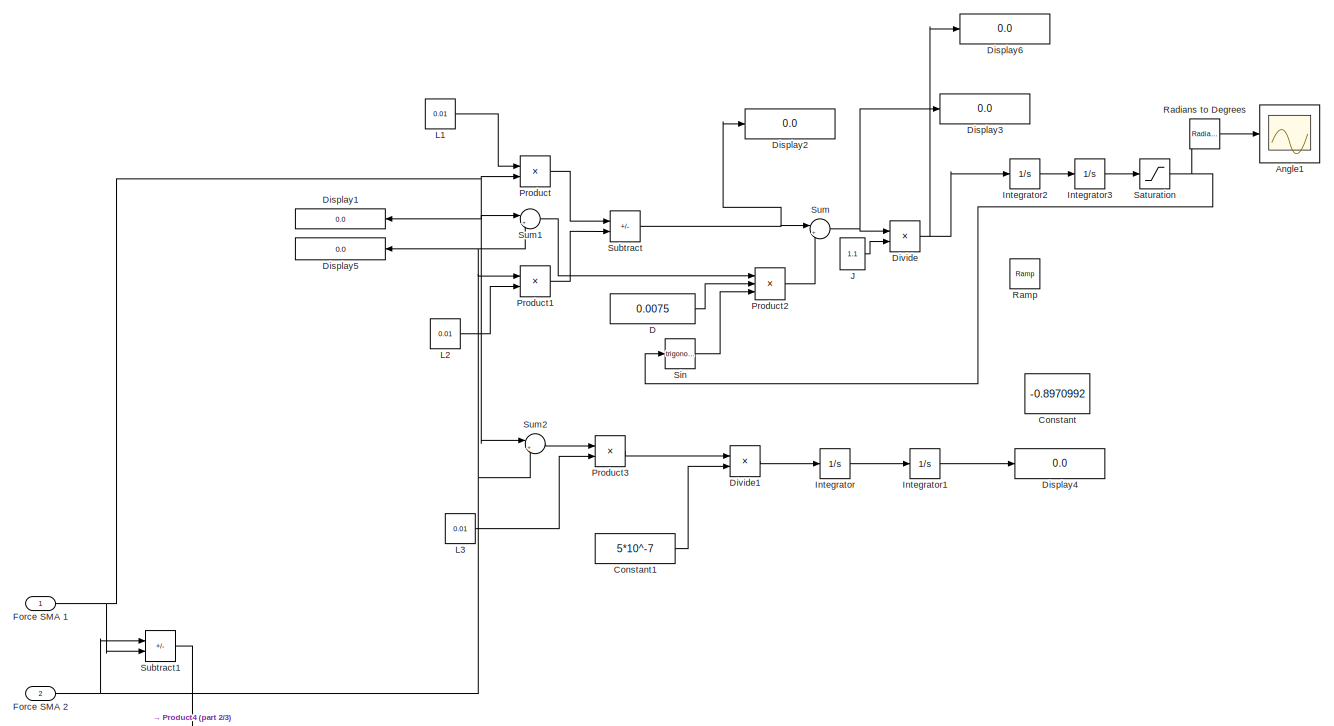
[diagram: kinematic Model - part 1/3, full width, middle band]
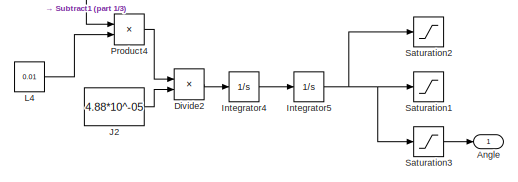
[diagram: kinematic Model - part 2/3, bottom left region]
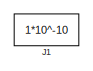
[diagram: kinematic Model - part 3/3, bottom left region]
BLOCK [SubSystem] kinematic Model
  PortSchema = {"entries":[{"content":{"sides":[{"content":{"connectorIds":["Out1"]},"type":"ConnectorPlacement.EquallySpacedRectSide","uuid":"3746d3e0-ba6e-4d7c-8bf9-dd32c198bc12"},{"content":{"connectorIds":[],"side":"RIGHT"},"type":"ConnectorPlacement.EquallySpacedRectSide","uuid":"3852cadb-76c1-45cf-8cd9-80dad7d1a69e"},{"content":{"connectorIds":["In1"],"side":"TOP"},"type":"ConnectorPlacement.EquallySpacedR...<+533ch>
BLOCK [Outport] kinematic Model/Angle
BLOCK [Scope] kinematic Model/Angle1
  Floating = off
  NumInputPorts = 1
  ScopeSpecificationString = Simulink.scopes.TimeScopeBlockCfg('CurrentConfiguration', extmgr.ConfigurationSet(extmgr.Configuration('Core','General UI',true),extmgr.Configuration('Core','Source UI',true),extmgr.Configuration('Sources','WiredSimulink',true,'DataLoggingVariableName','ScopeData2'),extmgr.Configuration('Visuals','Time Domain',true,'SerializedDisplays',{struct('MinYLimReal','-6.425','MaxYLimReal','57.825','YLabelR...<+1590ch>
BLOCK [Constant] kinematic Model/Constant
  Value = -0.8970992
BLOCK [Constant] kinematic Model/Constant1
  Value = 5*10^-7
BLOCK [Constant] kinematic Model/D
  Value = 0.0075
BLOCK [Display] kinematic Model/Display1
  Decimation = 1
BLOCK [Display] kinematic Model/Display2
  Decimation = 1
BLOCK [Display] kinematic Model/Display3
  Decimation = 1
BLOCK [Display] kinematic Model/Display4
  Decimation = 1
BLOCK [Display] kinematic Model/Display5
  Decimation = 1
BLOCK [Display] kinematic Model/Display6
  Decimation = 1
BLOCK [Product] kinematic Model/Divide
  Inputs = */
BLOCK [Product] kinematic Model/Divide1
  Inputs = */
BLOCK [Product] kinematic Model/Divide2
  Inputs = */
BLOCK [Inport] kinematic Model/Force SMA 1
BLOCK [Inport] kinematic Model/Force SMA 2
  Port = 2
BLOCK [Integrator] kinematic Model/Integrator
BLOCK [Integrator] kinematic Model/Integrator1
BLOCK [Integrator] kinematic Model/Integrator2
BLOCK [Integrator] kinematic Model/Integrator3
BLOCK [Integrator] kinematic Model/Integrator4
BLOCK [Integrator] kinematic Model/Integrator5
BLOCK [Constant] kinematic Model/J
  Value = 1.1
BLOCK [Constant] kinematic Model/J1
  Value = 1*10^-10
BLOCK [Constant] kinematic Model/J2
  Value = 4.88*10^-05
BLOCK [Constant] kinematic Model/L1
  Value = 0.01
BLOCK [Constant] kinematic Model/L2
  Value = 0.01
BLOCK [Constant] kinematic Model/L3
  Value = 0.01
BLOCK [Constant] kinematic Model/L4
  Value = 0.01
BLOCK [Product] kinematic Model/Product
BLOCK [Product] kinematic Model/Product1
BLOCK [Product] kinematic Model/Product2
  Inputs = 3
BLOCK [Product] kinematic Model/Product3
BLOCK [Product] kinematic Model/Product4
BLOCK [Reference] kinematic Model/Radians to Degrees  REF=simulink_extras/Transformations/Radians
to Degrees
  SourceBlock = simulink_extras/Transformations/Radians\nto Degrees
  SourceType = RadiansToDegrees
BLOCK [Reference] kinematic Model/Ramp  REF=simulink/Sources/Ramp
  SourceBlock = simulink/Sources/Ramp
  SourceType = Ramp
BLOCK [Saturate] kinematic Model/Saturation
  LowerLimit = -0.8970992
  UpperLimit = 0.8970992
BLOCK [Saturate] kinematic Model/Saturation1
  LowerLimit = -0.8970992
  UpperLimit = 0.8970992
BLOCK [Saturate] kinematic Model/Saturation2
  LowerLimit = -1.5708
  UpperLimit = 1.5708
BLOCK [Saturate] kinematic Model/Saturation3
BLOCK [Trigonometry] kinematic Model/Sin
BLOCK [Sum] kinematic Model/Subtract
  IconShape = rectangular
  Inputs = +-
BLOCK [Sum] kinematic Model/Subtract1
  IconShape = rectangular
  Inputs = +-
BLOCK [Sum] kinematic Model/Sum
  Inputs = |++
BLOCK [Sum] kinematic Model/Sum1
  Inputs = |++
  NameLocation = top
BLOCK [Sum] kinematic Model/Sum2
  Inputs = |+-
  NameLocation = top
ANNOTATION (root): Martensite Fraction (SMA2)
ANNOTATION (root): Martensite Fraction (SMA1)
ANNOTATION (root): dT_2/dt
ANNOTATION Constitutive Model: -\epsilon_R
ANNOTATION Constitutive Model: D\epsilon
ANNOTATION Constitutive Model: \Omega\xi
ANNOTATION Constitutive Model: \ThetaT
ANNOTATION Constitutive Model: \epsilon_R
ANNOTATION Constitutive Model: \epsilon_e
ANNOTATION Constitutive Model1: D\epsilon
ANNOTATION Constitutive Model1: \Omega\xi
ANNOTATION Constitutive Model1: \ThetaT
LINE Bus Creator2:1 -> Phase Transformation Model SMA 2:1
LINE Bus Creator:1 -> Phase Transformation Model SMA 1:1
LINE Constant2:1 -> Controller Subsystem:2
LINE Constitutive Model/Add1:1 -> Constitutive Model/Product18:2
NET Constitutive Model/D(Xi):1 -> Constitutive Model/Product2:2, Constitutive Model/Themo Tensor1:1
LINE Constitutive Model/Derivative1:1 -> Constitutive Model/Product2:1
LINE Constitutive Model/Derivative:1 -> Constitutive Model/Product1:2
NET Constitutive Model/Ea3:1 -> Constitutive Model/Sum15:2, Constitutive Model/Sum16:2
LINE Constitutive Model/Em3:1 -> Constitutive Model/Sum16:1
LINE Constitutive Model/Gain1:1 -> Constitutive Model/Stress :1
LINE Constitutive Model/Integrator1:1 -> Constitutive Model/Gain1:1
LINE Constitutive Model/Product15:1 -> Constitutive Model/Sum12:1
LINE Constitutive Model/Product16:1 -> Constitutive Model/Sum13:2
LINE Constitutive Model/Product17:1 -> Constitutive Model/Sum12:2
LINE Constitutive Model/Product18:1 -> Constitutive Model/Sum14:2
LINE Constitutive Model/Product19:1 -> Constitutive Model/Sum15:1
LINE Constitutive Model/Product1:1 -> Constitutive Model/Sum1:3
LINE Constitutive Model/Product2:1 -> Constitutive Model/Sum1:2
LINE Constitutive Model/Strain:1 -> Constitutive Model/Derivative1:1
LINE Constitutive Model/Sum12:1 -> Constitutive Model/Sum13:1
LINE Constitutive Model/Sum13:1 -> Constitutive Model/Sum14:1
NET Constitutive Model/Sum15:1 -> Constitutive Model/Product16:1, Constitutive Model/Product17:1, Constitutive Model/Product18:1
LINE Constitutive Model/Sum16:1 -> Constitutive Model/Product19:1
NET Constitutive Model/Sum1:1 -> Constitutive Model/Integrator1:1, Constitutive Model/Stress dot:1
NET Constitutive Model/Temp_In:1 -> Constitutive Model/Display2:1, Constitutive Model/Product15:2, Constitutive Model/theta_T:1
LINE Constitutive Model/Themo Tensor1:1 -> Constitutive Model/Product1:1
LINE Constitutive Model/Themo Tensor5:1 -> Constitutive Model/Product16:2
NET Constitutive Model/Themo Tensor6:1 -> Constitutive Model/Add1:1, Constitutive Model/Product17:2
NET Constitutive Model/phase f:1 -> Constitutive Model/D(Xi):1, Constitutive Model/Derivative:1, Constitutive Model/Product19:2, Constitutive Model/Themo Tensor5:1, Constitutive Model/Themo Tensor6:1
LINE Constitutive Model/thermo modulus2:1 -> Constitutive Model/Product15:1
LINE Constitutive Model/theta_T:1 -> Constitutive Model/Sum1:1
NET Constitutive Model1/D(Xi):1 -> Constitutive Model1/Product5:2, Constitutive Model1/Themo Tensor1:1
LINE Constitutive Model1/Derivative1:1 -> Constitutive Model1/Product5:1
LINE Constitutive Model1/Derivative:1 -> Constitutive Model1/Product4:2
LINE Constitutive Model1/Gain1:1 -> Constitutive Model1/Stress:1
LINE Constitutive Model1/Integrator1:1 -> Constitutive Model1/Gain1:1
LINE Constitutive Model1/Product4:1 -> Constitutive Model1/Sum4:3
LINE Constitutive Model1/Product5:1 -> Constitutive Model1/Sum4:2
LINE Constitutive Model1/Strain:1 -> Constitutive Model1/Derivative1:1
NET Constitutive Model1/Sum4:1 -> Constitutive Model1/Integrator1:1, Constitutive Model1/Stress dot:1
LINE Constitutive Model1/Temp_In:1 -> Constitutive Model1/theta_T:1
LINE Constitutive Model1/Themo Tensor1:1 -> Constitutive Model1/Product4:1
NET Constitutive Model1/phase f:1 -> Constitutive Model1/D(Xi):1, Constitutive Model1/Derivative:1
LINE Constitutive Model1/theta_T:1 -> Constitutive Model1/Sum4:1
NET Constitutive Model1:1 -> Force Model1:1, IC1:1, Total_Stress:2
NET Constitutive Model:1 -> Force Model:1, IC2:1, Total_Stress:1
LINE Controller Subsystem/Amp_Out1:1 -> Controller Subsystem/AMP1:1
LINE Controller Subsystem/Amp_Out:1 -> Controller Subsystem/AMP:1
LINE Controller Subsystem/PWM1:1 -> Controller Subsystem/Simulink-PS Converter2:1
LINE Controller Subsystem/PWM:1 -> Controller Subsystem/Simulink-PS Converter:1
LINE Controller Subsystem/RESISTANCE1:1 -> Controller Subsystem/Simulink-PS Converter3:1
LINE Controller Subsystem/RESISTANCE:1 -> Controller Subsystem/Simulink-PS Converter1:1
LINE Controller Subsystem/Voltage_Out2:1 -> Controller Subsystem/VOLT1:1
LINE Controller Subsystem/Voltage_Out:1 -> Controller Subsystem/VOLT:1
NET Controller Subsystem:1 -> Display1:1, Heat Transfer Model:1, Total_Temp1:1
NET Controller Subsystem:2 -> Display2:1, Heat Transfer Model:2, Total_Temp1:2
LINE Controller Subsystem:3 -> Heat Transfer Model1:1
LINE Controller Subsystem:4 -> Heat Transfer Model1:2
LINE Dynamic Model/Constant:1 -> Dynamic Model/Gain1:1
LINE Dynamic Model/Divide2:1 -> Dynamic Model/Strain_:1
LINE Dynamic Model/Gain1:1 -> Dynamic Model/Degrees to Radians:1
NET Dynamic Model/Product1:1 -> Dynamic Model/Divide2:1, Dynamic Model/Scope:1
LINE Dynamic Model/Product2:1 -> Dynamic Model/Sum1:1
LINE Dynamic Model/Sin:1 -> Dynamic Model/Product2:1
LINE Dynamic Model/Subtract:1 -> Dynamic Model/Divide1:1
LINE Dynamic Model/Sum1:1 -> Dynamic Model/Subtract:1
LINE Dynamic Model/Sum:1 -> Dynamic Model/Product2:2
NET Dynamic Model/Wire Length1:1 -> Dynamic Model/Divide1:2, Dynamic Model/Divide2:2, Dynamic Model/Subtract:2, Dynamic Model/Sum1:2
NET Dynamic Model/angle:1 -> Dynamic Model/Product1:1, Dynamic Model/Sin:1
LINE Dynamic Model/l1:1 -> Dynamic Model/Sum:1
LINE Dynamic Model/l2:1 -> Dynamic Model/Product1:2
LINE Dynamic Model/l_m:1 -> Dynamic Model/Sum:2
LINE Dynamic Model1/Constant:1 -> Dynamic Model1/Gain1:1
LINE Dynamic Model1/Divide1:1 -> Dynamic Model1/Display3:1
LINE Dynamic Model1/Divide2:1 -> Dynamic Model1/Strain_:1
LINE Dynamic Model1/Gain1:1 -> Dynamic Model1/Degrees to Radians:1
LINE Dynamic Model1/Product1:1 -> Dynamic Model1/Divide2:1
LINE Dynamic Model1/Product2:1 -> Dynamic Model1/Sum1:1
LINE Dynamic Model1/Sin:1 -> Dynamic Model1/Product2:1
LINE Dynamic Model1/Subtract:1 -> Dynamic Model1/Divide1:1
LINE Dynamic Model1/Sum1:1 -> Dynamic Model1/Subtract:1
LINE Dynamic Model1/Sum:1 -> Dynamic Model1/Product2:2
NET Dynamic Model1/Wire Length1:1 -> Dynamic Model1/Divide1:2, Dynamic Model1/Divide2:2, Dynamic Model1/Subtract:2, Dynamic Model1/Sum1:2
NET Dynamic Model1/angle:1 -> Dynamic Model1/Product1:1, Dynamic Model1/Sin:1
LINE Dynamic Model1/l1:1 -> Dynamic Model1/Sum:1
LINE Dynamic Model1/l2:1 -> Dynamic Model1/Product1:2
LINE Dynamic Model1/l_m:1 -> Dynamic Model1/Sum:2
NET Dynamic Model1:1 -> Constitutive Model1:3, Resistance Model1:1, Total_Strain:2
NET Dynamic Model:1 -> Constitutive Model:2, Resistance Model:1, Total_Strain:1
LINE Force Model/Product:1 -> Force Model/Force:1
LINE Force Model/Stress:1 -> Force Model/Product:2
LINE Force Model/Wire cross section:1 -> Force Model/Product:1
LINE Force Model1/Product:1 -> Force Model1/Force:1
LINE Force Model1/Stress:1 -> Force Model1/Product:2
LINE Force Model1/Wire cross section:1 -> Force Model1/Product:1
NET Force Model1:1 -> Total_Force:2, kinematic Model:2
NET Force Model:1 -> Total_Force:1, kinematic Model:1
LINE Gain1:1 -> Dynamic Model:1
NET Heat Transfer Model/Constant1:1 -> Heat Transfer Model/Integrator:2, Heat Transfer Model/Sum:2
LINE Heat Transfer Model/Constant:1 -> Heat Transfer Model/Divide6:2
LINE Heat Transfer Model/Current:1 -> Heat Transfer Model/Divide1:2
LINE Heat Transfer Model/Density:1 -> Heat Transfer Model/Divide7:3
LINE Heat Transfer Model/Divide12:1 -> Heat Transfer Model/Divide2:2
LINE Heat Transfer Model/Divide1:1 -> Heat Transfer Model/Divide4:1
LINE Heat Transfer Model/Divide2:1 -> Heat Transfer Model/Divide3:1
LINE Heat Transfer Model/Divide3:1 -> Heat Transfer Model/Sum1:1
LINE Heat Transfer Model/Divide4:1 -> Heat Transfer Model/Sum1:2
LINE Heat Transfer Model/Divide5:1 -> Heat Transfer Model/Multiply2:1
LINE Heat Transfer Model/Divide6:1 -> Heat Transfer Model/Divide9:2
LINE Heat Transfer Model/Divide7:1 -> Heat Transfer Model/Multiply:1
NET Heat Transfer Model/Divide9:1 -> Heat Transfer Model/Divide3:2, Heat Transfer Model/Divide4:2
LINE Heat Transfer Model/Heat Transfer Coeff:1 -> Heat Transfer Model/Divide12:1
NET Heat Transfer Model/Integrator:1 -> Heat Transfer Model/Sum:1, Heat Transfer Model/Temp:1
LINE Heat Transfer Model/Multiply2:1 -> Heat Transfer Model/Divide12:2
LINE Heat Transfer Model/Multiply:1 -> Heat Transfer Model/Divide6:1
LINE Heat Transfer Model/Specific Heat Capacity:1 -> Heat Transfer Model/Divide9:1
NET Heat Transfer Model/Sum1:1 -> Heat Transfer Model/Integrator:1, Heat Transfer Model/dT//dt:1
LINE Heat Transfer Model/Sum:1 -> Heat Transfer Model/Divide2:1
LINE Heat Transfer Model/Volt:1 -> Heat Transfer Model/Divide1:1
LINE Heat Transfer Model/Wire Diameter ^2:1 -> Heat Transfer Model/Divide7:1
LINE Heat Transfer Model/Wire Diameter:1 -> Heat Transfer Model/Divide5:1
LINE Heat Transfer Model/Wire Length1:1 -> Heat Transfer Model/Divide5:2
LINE Heat Transfer Model/Wire Length:1 -> Heat Transfer Model/Divide7:2
NET Heat Transfer Model1/Constant1:1 -> Heat Transfer Model1/Integrator:2, Heat Transfer Model1/Sum:2
LINE Heat Transfer Model1/Constant:1 -> Heat Transfer Model1/Divide6:2
LINE Heat Transfer Model1/Current:1 -> Heat Transfer Model1/Divide1:2
LINE Heat Transfer Model1/Density:1 -> Heat Transfer Model1/Divide7:3
LINE Heat Transfer Model1/Divide12:1 -> Heat Transfer Model1/Divide2:2
LINE Heat Transfer Model1/Divide1:1 -> Heat Transfer Model1/Divide4:1
LINE Heat Transfer Model1/Divide2:1 -> Heat Transfer Model1/Divide3:1
LINE Heat Transfer Model1/Divide3:1 -> Heat Transfer Model1/Sum1:1
LINE Heat Transfer Model1/Divide4:1 -> Heat Transfer Model1/Sum1:2
LINE Heat Transfer Model1/Divide5:1 -> Heat Transfer Model1/Multiply2:1
LINE Heat Transfer Model1/Divide6:1 -> Heat Transfer Model1/Divide9:2
LINE Heat Transfer Model1/Divide7:1 -> Heat Transfer Model1/Multiply:1
NET Heat Transfer Model1/Divide9:1 -> Heat Transfer Model1/Divide3:2, Heat Transfer Model1/Divide4:2
LINE Heat Transfer Model1/Heat Transfer Coeff:1 -> Heat Transfer Model1/Divide12:1
NET Heat Transfer Model1/Integrator:1 -> Heat Transfer Model1/Derivative:1, Heat Transfer Model1/Sum:1, Heat Transfer Model1/Temp:1
LINE Heat Transfer Model1/Multiply2:1 -> Heat Transfer Model1/Divide12:2
LINE Heat Transfer Model1/Multiply:1 -> Heat Transfer Model1/Divide6:1
LINE Heat Transfer Model1/Specific Heat Capacity:1 -> Heat Transfer Model1/Divide9:1
NET Heat Transfer Model1/Sum1:1 -> Heat Transfer Model1/Integrator:1, Heat Transfer Model1/dT//dt:1
LINE Heat Transfer Model1/Sum:1 -> Heat Transfer Model1/Divide2:1
LINE Heat Transfer Model1/Volt:1 -> Heat Transfer Model1/Divide1:1
LINE Heat Transfer Model1/Wire Diameter ^2:1 -> Heat Transfer Model1/Divide7:1
LINE Heat Transfer Model1/Wire Diameter:1 -> Heat Transfer Model1/Divide5:1
LINE Heat Transfer Model1/Wire Length1:1 -> Heat Transfer Model1/Divide5:2
LINE Heat Transfer Model1/Wire Length:1 -> Heat Transfer Model1/Divide7:2
NET Heat Transfer Model1:1 -> Bus Creator2:1, Constitutive Model1:2
NET Heat Transfer Model1:2 -> Bus Creator2:2, Phase Transfer Model:1, Total_Temp:2
NET Heat Transfer Model:1 -> Bus Creator:1, Constitutive Model:1
NET Heat Transfer Model:2 -> Bus Creator:2, Phase Transfer Model1:1, Total_Temp:1
LINE IC1:1 -> Bus Creator2:3
LINE IC2:1 -> Bus Creator:3
NET Phase Transfer Model/Af:1 -> Phase Transfer Model/If:3, Phase Transfer Model/Subtract1:1
NET Phase Transfer Model/As:1 -> Phase Transfer Model/If:2, Phase Transfer Model/Subtract1:2, Phase Transfer Model/Subtract:2
LINE Phase Transfer Model/Constant1:1 -> Phase Transfer Model/If Action Subsystem1:1
LINE Phase Transfer Model/Constant2:1 -> Phase Transfer Model/Sum:2
LINE Phase Transfer Model/Constant3:1 -> Phase Transfer Model/Subtract2:1
LINE Phase Transfer Model/Constant4:1 -> Phase Transfer Model/If Action Subsystem3:1
LINE Phase Transfer Model/Constant5:1 -> Phase Transfer Model/If Action Subsystem4:1
LINE Phase Transfer Model/Constant6:1 -> Phase Transfer Model/Sum1:2
LINE Phase Transfer Model/Constant:1 -> Phase Transfer Model/If Action Subsystem:1
LINE Phase Transfer Model/Cos1:1 -> Phase Transfer Model/Sum1:1
LINE Phase Transfer Model/Cos:1 -> Phase Transfer Model/Sum:1
NET Phase Transfer Model/Detect Decrease:1 -> Phase Transfer Model/Display3:1, Phase Transfer Model/Switch:2
LINE Phase Transfer Model/Divide1:1 -> Phase Transfer Model/Multiply2:1
LINE Phase Transfer Model/Divide:1 -> Phase Transfer Model/Multiply:1
LINE Phase Transfer Model/If Action Subsystem/In1:1 -> Phase Transfer Model/If Action Subsystem/Out1:1
LINE Phase Transfer Model/If Action Subsystem1/In1:1 -> Phase Transfer Model/If Action Subsystem1/Out1:1
LINE Phase Transfer Model/If Action Subsystem1:1 -> Phase Transfer Model/Merge:2
LINE Phase Transfer Model/If Action Subsystem2/In1:1 -> Phase Transfer Model/If Action Subsystem2/Out1:1
LINE Phase Transfer Model/If Action Subsystem2:1 -> Phase Transfer Model/Merge:3
LINE Phase Transfer Model/If Action Subsystem3/In1:1 -> Phase Transfer Model/If Action Subsystem3/Out1:1
LINE Phase Transfer Model/If Action Subsystem3:1 -> Phase Transfer Model/Merge1:1
LINE Phase Transfer Model/If Action Subsystem4/In1:1 -> Phase Transfer Model/If Action Subsystem4/Out1:1
LINE Phase Transfer Model/If Action Subsystem4:1 -> Phase Transfer Model/Merge1:2
LINE Phase Transfer Model/If Action Subsystem5/In1:1 -> Phase Transfer Model/If Action Subsystem5/Out1:1
LINE Phase Transfer Model/If Action Subsystem5:1 -> Phase Transfer Model/Merge1:3
LINE Phase Transfer Model/If Action Subsystem:1 -> Phase Transfer Model/Merge:1
LINE Phase Transfer Model/If1:1 -> Phase Transfer Model/If Action Subsystem3:ifaction
LINE Phase Transfer Model/If1:2 -> Phase Transfer Model/If Action Subsystem4:ifaction
LINE Phase Transfer Model/If1:3 -> Phase Transfer Model/If Action Subsystem5:ifaction
LINE Phase Transfer Model/If:1 -> Phase Transfer Model/If Action Subsystem:ifaction
LINE Phase Transfer Model/If:2 -> Phase Transfer Model/If Action Subsystem1:ifaction
LINE Phase Transfer Model/If:3 -> Phase Transfer Model/If Action Subsystem2:ifaction
NET Phase Transfer Model/Merge1:1 -> Phase Transfer Model/Display2:1, Phase Transfer Model/Switch:3
NET Phase Transfer Model/Merge:1 -> Phase Transfer Model/Display:1, Phase Transfer Model/Switch:1
NET Phase Transfer Model/Mf:1 -> Phase Transfer Model/If1:3, Phase Transfer Model/Subtract4:1
NET Phase Transfer Model/Ms:1 -> Phase Transfer Model/If1:2, Phase Transfer Model/Subtract3:2, Phase Transfer Model/Subtract4:2
LINE Phase Transfer Model/Multiply1:1 -> Phase Transfer Model/If Action Subsystem2:1
LINE Phase Transfer Model/Multiply2:1 -> Phase Transfer Model/Cos1:1
LINE Phase Transfer Model/Multiply3:1 -> Phase Transfer Model/If Action Subsystem5:1
LINE Phase Transfer Model/Multiply:1 -> Phase Transfer Model/Cos:1
LINE Phase Transfer Model/Subtract1:1 -> Phase Transfer Model/Divide:2
LINE Phase Transfer Model/Subtract2:1 -> Phase Transfer Model/Austenitic phase :1
LINE Phase Transfer Model/Subtract3:1 -> Phase Transfer Model/Divide1:1
LINE Phase Transfer Model/Subtract4:1 -> Phase Transfer Model/Divide1:2
LINE Phase Transfer Model/Subtract:1 -> Phase Transfer Model/Divide:1
LINE Phase Transfer Model/Sum1:1 -> Phase Transfer Model/Multiply3:1
LINE Phase Transfer Model/Sum:1 -> Phase Transfer Model/Multiply1:1
LINE Phase Transfer Model/Switch:1 -> Phase Transfer Model/Subtract2:2
NET Phase Transfer Model/Temp:1 -> Phase Transfer Model/Detect Decrease:1, Phase Transfer Model/If1:1, Phase Transfer Model/If:1, Phase Transfer Model/Subtract3:1, Phase Transfer Model/Subtract:1
NET Phase Transfer Model1/Af:1 -> Phase Transfer Model1/If:3, Phase Transfer Model1/Subtract1:1
NET Phase Transfer Model1/As:1 -> Phase Transfer Model1/If:2, Phase Transfer Model1/Subtract1:2, Phase Transfer Model1/Subtract:2
LINE Phase Transfer Model1/Constant1:1 -> Phase Transfer Model1/If Action Subsystem1:1
LINE Phase Transfer Model1/Constant2:1 -> Phase Transfer Model1/Sum:2
LINE Phase Transfer Model1/Constant3:1 -> Phase Transfer Model1/Subtract2:1
LINE Phase Transfer Model1/Constant4:1 -> Phase Transfer Model1/If Action Subsystem3:1
LINE Phase Transfer Model1/Constant5:1 -> Phase Transfer Model1/If Action Subsystem4:1
LINE Phase Transfer Model1/Constant6:1 -> Phase Transfer Model1/Sum1:2
LINE Phase Transfer Model1/Constant:1 -> Phase Transfer Model1/If Action Subsystem:1
LINE Phase Transfer Model1/Cos1:1 -> Phase Transfer Model1/Sum1:1
LINE Phase Transfer Model1/Cos:1 -> Phase Transfer Model1/Sum:1
NET Phase Transfer Model1/Detect Decrease:1 -> Phase Transfer Model1/Display3:1, Phase Transfer Model1/Switch:2
LINE Phase Transfer Model1/Divide1:1 -> Phase Transfer Model1/Multiply2:1
LINE Phase Transfer Model1/Divide:1 -> Phase Transfer Model1/Multiply:1
LINE Phase Transfer Model1/If Action Subsystem/In1:1 -> Phase Transfer Model1/If Action Subsystem/Out1:1
LINE Phase Transfer Model1/If Action Subsystem1/In1:1 -> Phase Transfer Model1/If Action Subsystem1/Out1:1
LINE Phase Transfer Model1/If Action Subsystem1:1 -> Phase Transfer Model1/Merge:2
LINE Phase Transfer Model1/If Action Subsystem2/In1:1 -> Phase Transfer Model1/If Action Subsystem2/Out1:1
LINE Phase Transfer Model1/If Action Subsystem2:1 -> Phase Transfer Model1/Merge:3
LINE Phase Transfer Model1/If Action Subsystem3/In1:1 -> Phase Transfer Model1/If Action Subsystem3/Out1:1
LINE Phase Transfer Model1/If Action Subsystem3:1 -> Phase Transfer Model1/Merge1:1
LINE Phase Transfer Model1/If Action Subsystem4/In1:1 -> Phase Transfer Model1/If Action Subsystem4/Out1:1
LINE Phase Transfer Model1/If Action Subsystem4:1 -> Phase Transfer Model1/Merge1:2
LINE Phase Transfer Model1/If Action Subsystem5/In1:1 -> Phase Transfer Model1/If Action Subsystem5/Out1:1
LINE Phase Transfer Model1/If Action Subsystem5:1 -> Phase Transfer Model1/Merge1:3
LINE Phase Transfer Model1/If Action Subsystem:1 -> Phase Transfer Model1/Merge:1
LINE Phase Transfer Model1/If1:1 -> Phase Transfer Model1/If Action Subsystem3:ifaction
LINE Phase Transfer Model1/If1:2 -> Phase Transfer Model1/If Action Subsystem4:ifaction
LINE Phase Transfer Model1/If1:3 -> Phase Transfer Model1/If Action Subsystem5:ifaction
LINE Phase Transfer Model1/If:1 -> Phase Transfer Model1/If Action Subsystem:ifaction
LINE Phase Transfer Model1/If:2 -> Phase Transfer Model1/If Action Subsystem1:ifaction
LINE Phase Transfer Model1/If:3 -> Phase Transfer Model1/If Action Subsystem2:ifaction
NET Phase Transfer Model1/Merge1:1 -> Phase Transfer Model1/Display2:1, Phase Transfer Model1/Switch:3
NET Phase Transfer Model1/Merge:1 -> Phase Transfer Model1/Display:1, Phase Transfer Model1/Switch:1
NET Phase Transfer Model1/Mf:1 -> Phase Transfer Model1/If1:3, Phase Transfer Model1/Subtract4:1
NET Phase Transfer Model1/Ms:1 -> Phase Transfer Model1/If1:2, Phase Transfer Model1/Subtract3:2, Phase Transfer Model1/Subtract4:2
LINE Phase Transfer Model1/Multiply1:1 -> Phase Transfer Model1/If Action Subsystem2:1
LINE Phase Transfer Model1/Multiply2:1 -> Phase Transfer Model1/Cos1:1
LINE Phase Transfer Model1/Multiply3:1 -> Phase Transfer Model1/If Action Subsystem5:1
LINE Phase Transfer Model1/Multiply:1 -> Phase Transfer Model1/Cos:1
LINE Phase Transfer Model1/Subtract1:1 -> Phase Transfer Model1/Divide:2
LINE Phase Transfer Model1/Subtract2:1 -> Phase Transfer Model1/Austenitic phase :1
LINE Phase Transfer Model1/Subtract3:1 -> Phase Transfer Model1/Divide1:1
LINE Phase Transfer Model1/Subtract4:1 -> Phase Transfer Model1/Divide1:2
LINE Phase Transfer Model1/Subtract:1 -> Phase Transfer Model1/Divide:1
LINE Phase Transfer Model1/Sum1:1 -> Phase Transfer Model1/Multiply3:1
LINE Phase Transfer Model1/Sum:1 -> Phase Transfer Model1/Multiply1:1
LINE Phase Transfer Model1/Switch:1 -> Phase Transfer Model1/Subtract2:2
NET Phase Transfer Model1/Temp:1 -> Phase Transfer Model1/Detect Decrease:1, Phase Transfer Model1/If1:1, Phase Transfer Model1/If:1, Phase Transfer Model1/Subtract3:1, Phase Transfer Model1/Subtract:1
NET Phase Transfer Model1:1 -> Constitutive Model:3, Resistance Model:2, Total_Phase:1
NET Phase Transfer Model:1 -> Constitutive Model1:1, Resistance Model1:2, Total_Phase:2
LINE Phase Transformation Model SMA 1:1 -> Total_Phase1:1
LINE Phase Transformation Model SMA 2:1 -> Total_Phase1:2
LINE Pulse Generator2:1 -> Controller Subsystem:1
LINE Radians to Degrees:1 -> Angle1:1
LINE Resistance Model/Constant1:1 -> Resistance Model/Subtract1:1
LINE Resistance Model/Constant:1 -> Resistance Model/Subtract:1
NET Resistance Model/Phase:1 -> Resistance Model/Product2:2, Resistance Model/Product:2, Resistance Model/Subtract1:2, Resistance Model/Subtract:2
LINE Resistance Model/Product1:1 -> Resistance Model/Sum:2
LINE Resistance Model/Product2:1 -> Resistance Model/Sum1:1
LINE Resistance Model/Product3:1 -> Resistance Model/Sum1:2
LINE Resistance Model/Product:1 -> Resistance Model/Sum:1
LINE Resistance Model/Ra/Divide:1 -> Resistance Model/Ra/Ra:1
LINE Resistance Model/Ra/Product2:1 -> Resistance Model/Ra/Divide:1
LINE Resistance Model/Ra/Strain:1 -> Resistance Model/Ra/Sum1:2
LINE Resistance Model/Ra/Sum1:1 -> Resistance Model/Ra/Product2:2
LINE Resistance Model/Ra/p_m1:1 -> Resistance Model/Ra/Sum1:1
LINE Resistance Model/Ra/p_m2:1 -> Resistance Model/Ra/Divide:2
LINE Resistance Model/Ra/p_m:1 -> Resistance Model/Ra/Product2:1
LINE Resistance Model/Ra1/Constant1:1 -> Resistance Model/Ra1/Divide:2
LINE Resistance Model/Ra1/Constant:1 -> Resistance Model/Ra1/Sum:1
LINE Resistance Model/Ra1/Divide:1 -> Resistance Model/Ra1/Ra:1
LINE Resistance Model/Ra1/Gain1:1 -> Resistance Model/Ra1/Sum:2
LINE Resistance Model/Ra1/Gain:1 -> Resistance Model/Ra1/Product:1
LINE Resistance Model/Ra1/Product:1 -> Resistance Model/Ra1/Divide:1
LINE Resistance Model/Ra1/Strain:1 -> Resistance Model/Ra1/Gain1:1
LINE Resistance Model/Ra1/Sum:1 -> Resistance Model/Ra1/Product:2
LINE Resistance Model/Ra1/p_a:1 -> Resistance Model/Ra1/Gain:1
LINE Resistance Model/Ra1:1 -> Resistance Model/Product1:1
LINE Resistance Model/Ra:1 -> Resistance Model/Product3:2
LINE Resistance Model/Rm/Constant1:1 -> Resistance Model/Rm/Divide:2
LINE Resistance Model/Rm/Constant:1 -> Resistance Model/Rm/Sum:1
LINE Resistance Model/Rm/Divide:1 -> Resistance Model/Rm/Rm:1
LINE Resistance Model/Rm/Gain1:1 -> Resistance Model/Rm/Sum:2
LINE Resistance Model/Rm/Gain:1 -> Resistance Model/Rm/Product:1
LINE Resistance Model/Rm/Product:1 -> Resistance Model/Rm/Divide:1
LINE Resistance Model/Rm/Strain:1 -> Resistance Model/Rm/Gain1:1
LINE Resistance Model/Rm/Sum:1 -> Resistance Model/Rm/Product:2
LINE Resistance Model/Rm/p_m:1 -> Resistance Model/Rm/Gain:1
LINE Resistance Model/Rm1/Divide:1 -> Resistance Model/Rm1/Rm:1
LINE Resistance Model/Rm1/Product2:1 -> Resistance Model/Rm1/Divide:1
LINE Resistance Model/Rm1/Strain:1 -> Resistance Model/Rm1/Sum1:2
LINE Resistance Model/Rm1/Sum1:1 -> Resistance Model/Rm1/Product2:2
LINE Resistance Model/Rm1/p_m1:1 -> Resistance Model/Rm1/Sum1:1
LINE Resistance Model/Rm1/p_m2:1 -> Resistance Model/Rm1/Divide:2
LINE Resistance Model/Rm1/p_m:1 -> Resistance Model/Rm1/Product2:1
LINE Resistance Model/Rm1:1 -> Resistance Model/Product2:1
LINE Resistance Model/Rm:1 -> Resistance Model/Product:1
NET Resistance Model/Strain_Input:1 -> Resistance Model/Ra1:1, Resistance Model/Ra:1, Resistance Model/Rm1:1, Resistance Model/Rm:1
LINE Resistance Model/Subtract1:1 -> Resistance Model/Product3:1
LINE Resistance Model/Subtract:1 -> Resistance Model/Product1:2
LINE Resistance Model/Sum1:1 -> Resistance Model/R:1
LINE Resistance Model1/Constant1:1 -> Resistance Model1/Subtract1:1
LINE Resistance Model1/Constant:1 -> Resistance Model1/Subtract:1
NET Resistance Model1/Phase:1 -> Resistance Model1/Product2:2, Resistance Model1/Product:2, Resistance Model1/Subtract1:2, Resistance Model1/Subtract:2
LINE Resistance Model1/Product1:1 -> Resistance Model1/Sum:2
LINE Resistance Model1/Product2:1 -> Resistance Model1/Sum1:1
LINE Resistance Model1/Product3:1 -> Resistance Model1/Sum1:2
LINE Resistance Model1/Product:1 -> Resistance Model1/Sum:1
LINE Resistance Model1/Ra/Divide:1 -> Resistance Model1/Ra/Ra:1
LINE Resistance Model1/Ra/Product2:1 -> Resistance Model1/Ra/Divide:1
LINE Resistance Model1/Ra/Strain:1 -> Resistance Model1/Ra/Sum1:2
LINE Resistance Model1/Ra/Sum1:1 -> Resistance Model1/Ra/Product2:2
LINE Resistance Model1/Ra/p_m1:1 -> Resistance Model1/Ra/Sum1:1
LINE Resistance Model1/Ra/p_m2:1 -> Resistance Model1/Ra/Divide:2
LINE Resistance Model1/Ra/p_m:1 -> Resistance Model1/Ra/Product2:1
LINE Resistance Model1/Ra1/Constant1:1 -> Resistance Model1/Ra1/Divide:2
LINE Resistance Model1/Ra1/Constant:1 -> Resistance Model1/Ra1/Sum:1
LINE Resistance Model1/Ra1/Divide:1 -> Resistance Model1/Ra1/Ra:1
LINE Resistance Model1/Ra1/Gain1:1 -> Resistance Model1/Ra1/Sum:2
LINE Resistance Model1/Ra1/Gain:1 -> Resistance Model1/Ra1/Product:1
LINE Resistance Model1/Ra1/Product:1 -> Resistance Model1/Ra1/Divide:1
LINE Resistance Model1/Ra1/Strain:1 -> Resistance Model1/Ra1/Gain1:1
LINE Resistance Model1/Ra1/Sum:1 -> Resistance Model1/Ra1/Product:2
LINE Resistance Model1/Ra1/p_a:1 -> Resistance Model1/Ra1/Gain:1
NET Resistance Model1/Ra1:1 -> Resistance Model1/Display2:1, Resistance Model1/Product1:1
LINE Resistance Model1/Ra:1 -> Resistance Model1/Product3:2
LINE Resistance Model1/Rm/Constant1:1 -> Resistance Model1/Rm/Divide:2
LINE Resistance Model1/Rm/Constant:1 -> Resistance Model1/Rm/Sum:1
LINE Resistance Model1/Rm/Divide:1 -> Resistance Model1/Rm/Rm:1
LINE Resistance Model1/Rm/Gain1:1 -> Resistance Model1/Rm/Sum:2
LINE Resistance Model1/Rm/Gain:1 -> Resistance Model1/Rm/Product:1
LINE Resistance Model1/Rm/Product:1 -> Resistance Model1/Rm/Divide:1
LINE Resistance Model1/Rm/Strain:1 -> Resistance Model1/Rm/Gain1:1
LINE Resistance Model1/Rm/Sum:1 -> Resistance Model1/Rm/Product:2
LINE Resistance Model1/Rm/p_m:1 -> Resistance Model1/Rm/Gain:1
LINE Resistance Model1/Rm1/Divide:1 -> Resistance Model1/Rm1/Rm:1
LINE Resistance Model1/Rm1/Product2:1 -> Resistance Model1/Rm1/Divide:1
LINE Resistance Model1/Rm1/Strain:1 -> Resistance Model1/Rm1/Sum1:2
LINE Resistance Model1/Rm1/Sum1:1 -> Resistance Model1/Rm1/Product2:2
LINE Resistance Model1/Rm1/p_m1:1 -> Resistance Model1/Rm1/Sum1:1
LINE Resistance Model1/Rm1/p_m2:1 -> Resistance Model1/Rm1/Divide:2
LINE Resistance Model1/Rm1/p_m:1 -> Resistance Model1/Rm1/Product2:1
LINE Resistance Model1/Rm1:1 -> Resistance Model1/Product2:1
LINE Resistance Model1/Rm:1 -> Resistance Model1/Product:1
NET Resistance Model1/Strain_Input:1 -> Resistance Model1/Ra1:1, Resistance Model1/Ra:1, Resistance Model1/Rm1:1, Resistance Model1/Rm:1
LINE Resistance Model1/Subtract1:1 -> Resistance Model1/Product3:1
LINE Resistance Model1/Subtract:1 -> Resistance Model1/Product1:2
LINE Resistance Model1/Sum1:1 -> Resistance Model1/R:1
LINE Resistance Model1/Sum:1 -> Resistance Model1/Display3:1
NET Resistance Model1:1 -> Controller Subsystem:4, Total_Resistance:2
NET Resistance Model:1 -> Controller Subsystem:3, Total_Resistance:1
LINE kinematic Model/Constant1:1 -> kinematic Model/Divide1:2
LINE kinematic Model/D:1 -> kinematic Model/Product2:2
LINE kinematic Model/Divide1:1 -> kinematic Model/Integrator:1
LINE kinematic Model/Divide2:1 -> kinematic Model/Integrator4:1
NET kinematic Model/Divide:1 -> kinematic Model/Display6:1, kinematic Model/Integrator2:1
NET kinematic Model/Force SMA 1:1 -> kinematic Model/Display1:1, kinematic Model/Product:2, kinematic Model/Subtract1:2, kinematic Model/Sum1:1, kinematic Model/Sum2:1
NET kinematic Model/Force SMA 2:1 -> kinematic Model/Display5:1, kinematic Model/Product1:1, kinematic Model/Subtract1:1, kinematic Model/Sum1:2, kinematic Model/Sum2:2
LINE kinematic Model/Integrator1:1 -> kinematic Model/Display4:1
LINE kinematic Model/Integrator2:1 -> kinematic Model/Integrator3:1
LINE kinematic Model/Integrator3:1 -> kinematic Model/Saturation:1
LINE kinematic Model/Integrator4:1 -> kinematic Model/Integrator5:1
NET kinematic Model/Integrator5:1 -> kinematic Model/Saturation1:1, kinematic Model/Saturation2:1, kinematic Model/Saturation3:1
LINE kinematic Model/Integrator:1 -> kinematic Model/Integrator1:1
LINE kinematic Model/J2:1 -> kinematic Model/Divide2:2
LINE kinematic Model/J:1 -> kinematic Model/Divide:2
LINE kinematic Model/L1:1 -> kinematic Model/Product:1
LINE kinematic Model/L2:1 -> kinematic Model/Product1:2
LINE kinematic Model/L3:1 -> kinematic Model/Product3:2
LINE kinematic Model/L4:1 -> kinematic Model/Product4:2
LINE kinematic Model/Product1:1 -> kinematic Model/Subtract:2
LINE kinematic Model/Product2:1 -> kinematic Model/Sum:2
LINE kinematic Model/Product3:1 -> kinematic Model/Divide1:1
LINE kinematic Model/Product4:1 -> kinematic Model/Divide2:1
LINE kinematic Model/Product:1 -> kinematic Model/Subtract:1
LINE kinematic Model/Radians to Degrees:1 -> kinematic Model/Angle1:1
LINE kinematic Model/Saturation3:1 -> kinematic Model/Angle:1
NET kinematic Model/Saturation:1 -> kinematic Model/Radians to Degrees:1, kinematic Model/Sin:1
LINE kinematic Model/Sin:1 -> kinematic Model/Product2:3
LINE kinematic Model/Subtract1:1 -> kinematic Model/Product4:1
NET kinematic Model/Subtract:1 -> kinematic Model/Display2:1, kinematic Model/Sum:1
LINE kinematic Model/Sum1:1 -> kinematic Model/Product2:1
LINE kinematic Model/Sum2:1 -> kinematic Model/Product3:1
NET kinematic Model/Sum:1 -> kinematic Model/Display3:1, kinematic Model/Divide:1
NET kinematic Model:1 -> Dynamic Model1:1, Gain1:1, Radian Angle:1, Radians to Degrees:1
PLINE Controller Subsystem/Amp_Out1:LConn1 -- Controller Subsystem/Current Sensor1:RConn1
PLINE Controller Subsystem/Amp_Out:LConn1 -- Controller Subsystem/Current Sensor:RConn1
PNET net1: Controller Subsystem/Controlled PWM Voltage1:LConn1 -- Controller Subsystem/Simulink-PS Converter2:RConn1 -- Controller Subsystem/Solver Configuration2:RConn1
PLINE Controller Subsystem/Controlled PWM Voltage1:RConn1 -- Controller Subsystem/NPN Bipolar Transistor1:LConn1
PNET net2: Controller Subsystem/Controlled PWM Voltage1:RConn2 -- Controller Subsystem/Electrical Reference1:LConn1 -- Controller Subsystem/NPN Bipolar Transistor1:RConn2 -- Controller Subsystem/Variable Resistor2:RConn1 -- Controller Subsystem/Voltage Sensor2:RConn2 -- Controller Subsystem/Voltage Source1:RConn1
PNET net3: Controller Subsystem/Controlled PWM Voltage:LConn1 -- Controller Subsystem/Simulink-PS Converter:RConn1 -- Controller Subsystem/Solver Configuration1:RConn1
PLINE Controller Subsystem/Controlled PWM Voltage:RConn1 -- Controller Subsystem/NPN Bipolar Transistor:LConn1
PNET net4: Controller Subsystem/Controlled PWM Voltage:RConn2 -- Controller Subsystem/Electrical Reference:LConn1 -- Controller Subsystem/NPN Bipolar Transistor:RConn2 -- Controller Subsystem/Variable Resistor1:RConn1 -- Controller Subsystem/Voltage Sensor:RConn2 -- Controller Subsystem/Voltage Source:RConn1
PLINE Controller Subsystem/Current Sensor1:LConn1 -- Controller Subsystem/P-Channel MOSFET1:RConn2
PNET net5: Controller Subsystem/Current Sensor1:RConn2 -- Controller Subsystem/Variable Resistor2:LConn2 -- Controller Subsystem/Voltage Sensor2:LConn1
PLINE Controller Subsystem/Current Sensor:LConn1 -- Controller Subsystem/P-Channel MOSFET:RConn2
PNET net6: Controller Subsystem/Current Sensor:RConn2 -- Controller Subsystem/Variable Resistor1:LConn2 -- Controller Subsystem/Voltage Sensor:LConn1
PNET net7: Controller Subsystem/NPN Bipolar Transistor1:RConn1 -- Controller Subsystem/P-Channel MOSFET1:LConn1 -- Controller Subsystem/Resistor1:LConn1
PNET net8: Controller Subsystem/NPN Bipolar Transistor:RConn1 -- Controller Subsystem/P-Channel MOSFET:LConn1 -- Controller Subsystem/Resistor:LConn1
PNET net9: Controller Subsystem/P-Channel MOSFET1:RConn1 -- Controller Subsystem/Resistor1:RConn1 -- Controller Subsystem/Voltage Source1:LConn1
PNET net10: Controller Subsystem/P-Channel MOSFET:RConn1 -- Controller Subsystem/Resistor:RConn1 -- Controller Subsystem/Voltage Source:LConn1
PLINE Controller Subsystem/Simulink-PS Converter1:RConn1 -- Controller Subsystem/Variable Resistor1:LConn1
PLINE Controller Subsystem/Simulink-PS Converter3:RConn1 -- Controller Subsystem/Variable Resistor2:LConn1
PLINE Controller Subsystem/Voltage Sensor2:RConn1 -- Controller Subsystem/Voltage_Out2:LConn1
PLINE Controller Subsystem/Voltage Sensor:RConn1 -- Controller Subsystem/Voltage_Out:LConn1
note: NET lines group one-source signal fan-out (src -> all destinations, sorted); 1:1 wires keep LINE; PNET lines group multi-terminal physical nets as a canonical sorted terminal list (undirected conserving connections); 2-terminal nets keep the pairwise PLINE form
